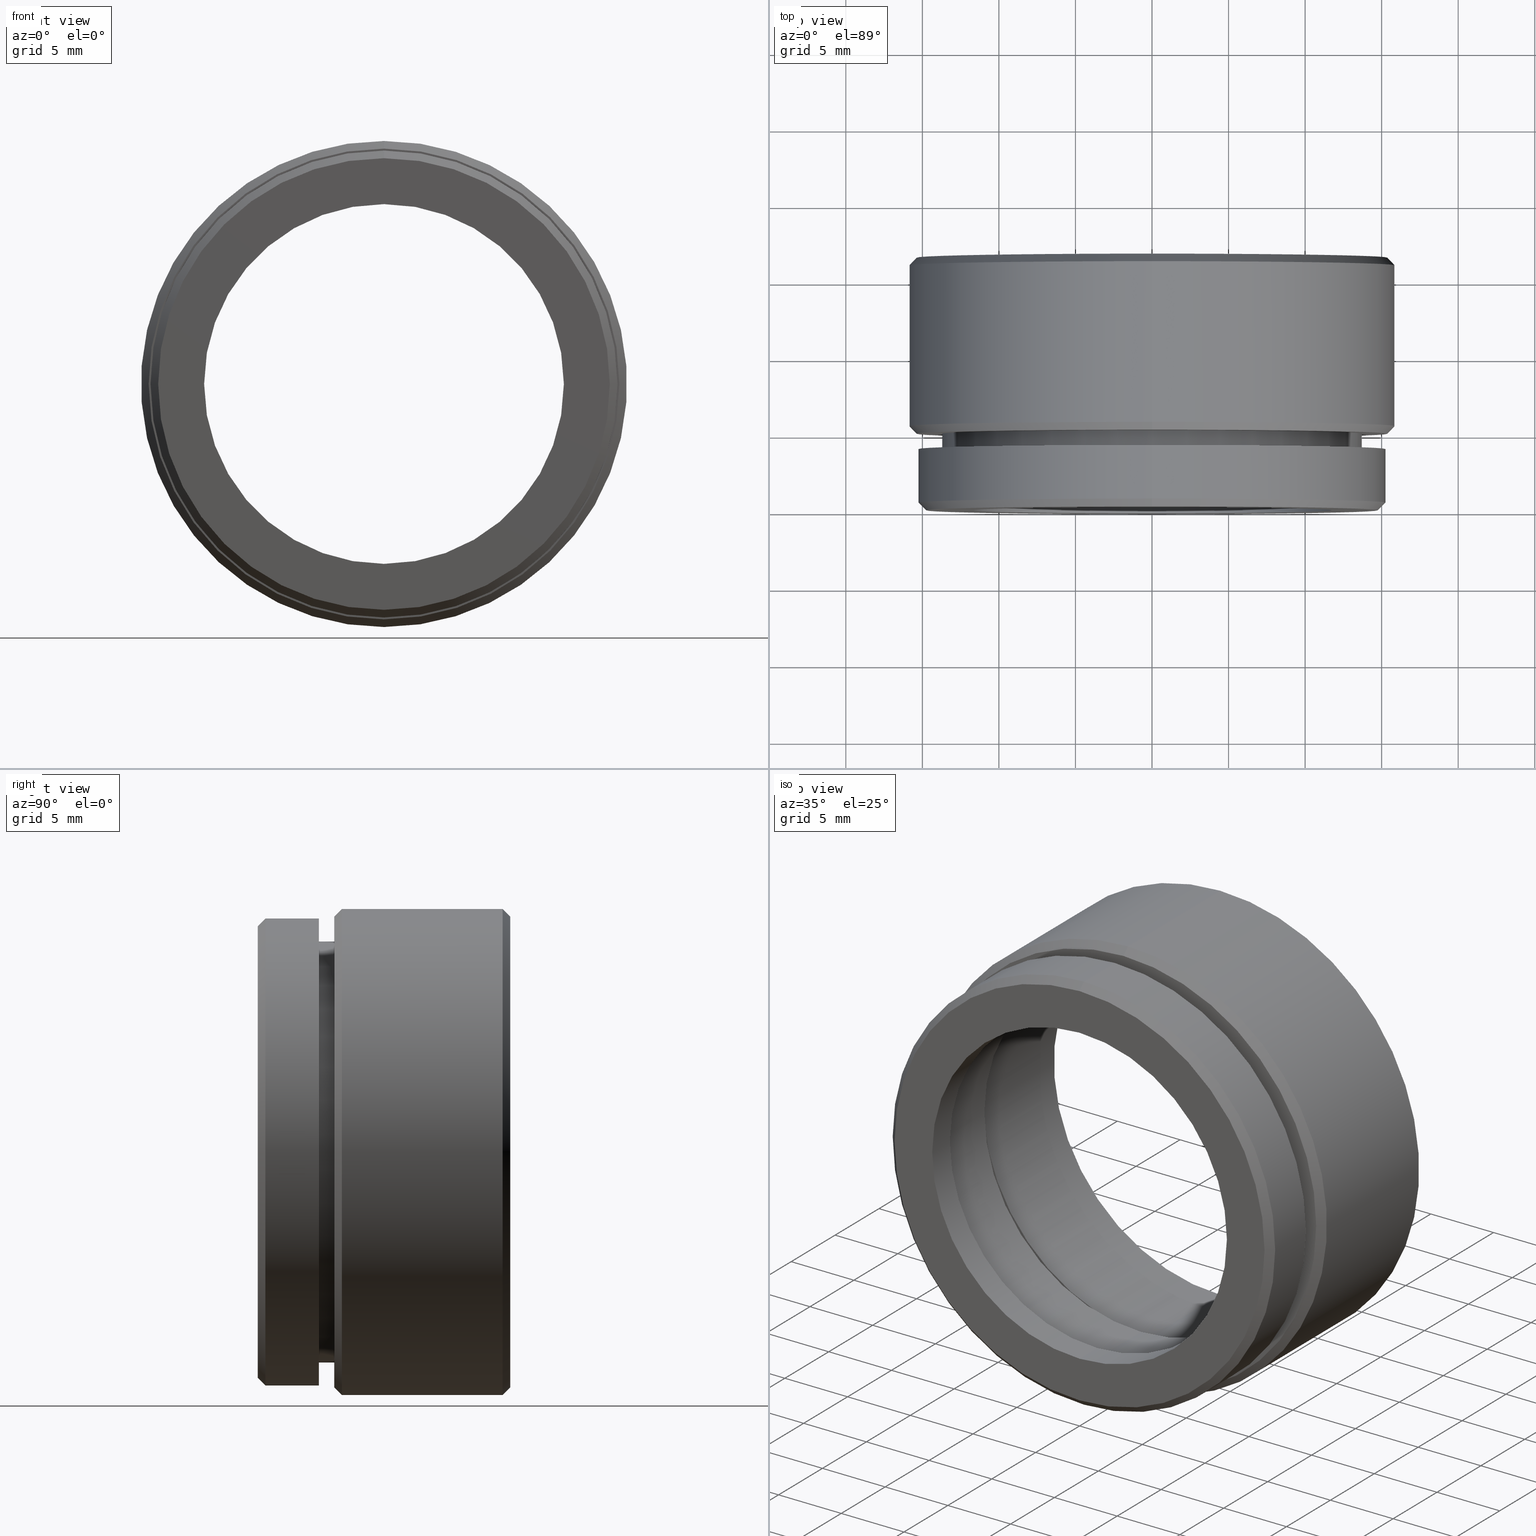
[diagram: canonical four-view strip — front | top / right | iso, engineering-drawing reading convention]
A machine part, canonical four-view strip (front | top / right | iso — engineering-drawing reading convention). The complete STEP part file that produces these views, byte-faithful:
ISO-10303-21;
HEADER;
FILE_DESCRIPTION (( 'STEP AP214' ),
    '1' );
FILE_NAME ('500022.STEP',
    '2019-09-03T08:14:15',
    ( 'user' ),
    ( '΢���й�' ),
    'SwSTEP 2.0',
    'SolidWorks 2016',
    '' );
FILE_SCHEMA (( 'AUTOMOTIVE_DESIGN' ));
ENDSEC;

DATA;
#1 = DIRECTION ( 'NONE',  ( 0.0000000000000000000, 0.0000000000000000000, -1.000000000000000000 ) ) ;
#2 = DIRECTION ( 'NONE',  ( 0.0000000000000000000, 0.0000000000000000000, -1.000000000000000000 ) ) ;
#3 = ORIENTED_EDGE ( 'NONE', *, *, #196, .F. ) ;
#4 = CIRCLE ( 'NONE', #749, 15.25000000000000000 ) ;
#5 = EDGE_CURVE ( 'NONE', #318, #41, #322, .T. ) ;
#6 = LINE ( 'NONE', #482, #239 ) ;
#7 = DIRECTION ( 'NONE',  ( 0.0000000000000000000, 1.000000000000000000, 0.0000000000000000000 ) ) ;
#8 = PRESENTATION_LAYER_ASSIGNMENT (  '', '', ( #837 ) ) ;
#9 = EDGE_LOOP ( 'NONE', ( #787, #219 ) ) ;
#10 = CARTESIAN_POINT ( 'NONE',  ( 0.0000000000000000000, 2.000000000000000400, -12.50000000000000000 ) ) ;
#11 = DIRECTION ( 'NONE',  ( 0.0000000000000000000, 0.0000000000000000000, 1.000000000000000000 ) ) ;
#12 = CARTESIAN_POINT ( 'NONE',  ( 1.836970198721030400E-015, 0.0000000000000000000, -14.75000000000000500 ) ) ;
#13 = ORIENTED_EDGE ( 'NONE', *, *, #213, .F. ) ;
#14 = ADVANCED_FACE ( 'NONE', ( #312 ), #283, .F. ) ;
#15 = DIRECTION ( 'NONE',  ( 0.0000000000000000000, 0.0000000000000000000, -1.000000000000000000 ) ) ;
#16 = MECHANICAL_DESIGN_GEOMETRIC_PRESENTATION_REPRESENTATION (  '', ( #385 ), #761 ) ;
#17 = ORIENTED_EDGE ( 'NONE', *, *, #413, .F. ) ;
#18 = CARTESIAN_POINT ( 'NONE',  ( 0.0000000000000000000, 2.000000000000000000, 0.0000000000000000000 ) ) ;
#19 = CARTESIAN_POINT ( 'NONE',  ( 0.0000000000000000000, 0.4999999999999987200, 0.0000000000000000000 ) ) ;
#20 = CARTESIAN_POINT ( 'NONE',  ( 13.25000000000000200, 8.000000000000000000, 0.0000000000000000000 ) ) ;
#21 = ORIENTED_EDGE ( 'NONE', *, *, #282, .T. ) ;
#22 = ORIENTED_EDGE ( 'NONE', *, *, #307, .T. ) ;
#23 = ORIENTED_EDGE ( 'NONE', *, *, #175, .T. ) ;
#24 = DIRECTION ( 'NONE',  ( -0.0000000000000000000, -1.000000000000000000, -0.0000000000000000000 ) ) ;
#25 = UNCERTAINTY_MEASURE_WITH_UNIT (LENGTH_MEASURE( 1.000000000000000100E-005 ), #107, 'distance_accuracy_value', 'NONE');
#26 = CARTESIAN_POINT ( 'NONE',  ( 0.0000000000000000000, 0.0000000000000000000, 0.0000000000000000000 ) ) ;
#27 = DIRECTION ( 'NONE',  ( 0.0000000000000000000, 0.0000000000000000000, 1.000000000000000000 ) ) ;
#28 = ADVANCED_FACE ( 'NONE', ( #144 ), #114, .F. ) ;
#29 = DIRECTION ( 'NONE',  ( 0.0000000000000000000, 0.0000000000000000000, -1.000000000000000000 ) ) ;
#30 = DIRECTION ( 'NONE',  ( 0.0000000000000000000, 0.0000000000000000000, -1.000000000000000000 ) ) ;
#31 = ORIENTED_EDGE ( 'NONE', *, *, #307, .F. ) ;
#32 = EDGE_LOOP ( 'NONE', ( #234, #541, #21, #628 ) ) ;
#33 = ADVANCED_FACE ( 'NONE', ( #692, #241 ), #446, .T. ) ;
#34 = ORIENTED_EDGE ( 'NONE', *, *, #716, .T. ) ;
#35 = CARTESIAN_POINT ( 'NONE',  ( 0.0000000000000000000, 7.000000000000000900, 0.0000000000000000000 ) ) ;
#36 = AXIS2_PLACEMENT_3D ( 'NONE', #836, #737, #619 ) ;
#37 = CARTESIAN_POINT ( 'NONE',  ( 0.0000000000000000000, 0.0000000000000000000, 0.0000000000000000000 ) ) ;
#38 = CIRCLE ( 'NONE', #502, 13.25000000000000200 ) ;
#39 = EDGE_CURVE ( 'NONE', #509, #318, #248, .T. ) ;
#40 = PLANE ( 'NONE',  #310 ) ;
#41 = VERTEX_POINT ( 'NONE', #384 ) ;
#42 = DIRECTION ( 'NONE',  ( 0.0000000000000000000, -0.0000000000000000000, 1.000000000000000000 ) ) ;
#43 = ORIENTED_EDGE ( 'NONE', *, *, #639, .T. ) ;
#44 = FILL_AREA_STYLE_COLOUR ( '', #226 ) ;
#45 = CARTESIAN_POINT ( 'NONE',  ( 15.87500000000000000, 16.50000000000000000, 0.0000000000000000000 ) ) ;
#46 = VERTEX_POINT ( 'NONE', #857 ) ;
#47 = VECTOR ( 'NONE', #187, 1000.000000000000000 ) ;
#48 = FILL_AREA_STYLE_COLOUR ( '', #459 ) ;
#49 = FACE_OUTER_BOUND ( 'NONE', #217, .T. ) ;
#50 = FACE_BOUND ( 'NONE', #395, .T. ) ;
#51 = DIRECTION ( 'NONE',  ( 0.0000000000000000000, 0.0000000000000000000, -1.000000000000000000 ) ) ;
#52 = CYLINDRICAL_SURFACE ( 'NONE', #765, 15.87500000000000000 ) ;
#53 = DIRECTION ( 'NONE',  ( 0.0000000000000000000, 0.0000000000000000000, 1.000000000000000000 ) ) ;
#54 = COLOUR_RGB ( '',1.000000000000000000, 1.000000000000000000, 1.000000000000000000 ) ;
#55 = EDGE_CURVE ( 'NONE', #832, #635, #846, .T. ) ;
#56 = EDGE_CURVE ( 'NONE', #279, #516, #411, .T. ) ;
#57 = ORIENTED_EDGE ( 'NONE', *, *, #369, .F. ) ;
#58 = AXIS2_PLACEMENT_3D ( 'NONE', #562, #397, #798 ) ;
#59 = UNCERTAINTY_MEASURE_WITH_UNIT (LENGTH_MEASURE( 1.000000000000000100E-005 ), #584, 'distance_accuracy_value', 'NONE');
#60 = CARTESIAN_POINT ( 'NONE',  ( 1.757368156776452000E-015, 8.000000000000000000, 14.35000000000000100 ) ) ;
#61 = DIRECTION ( 'NONE',  ( -0.0000000000000000000, -1.000000000000000000, -0.0000000000000000000 ) ) ;
#62 = ORIENTED_EDGE ( 'NONE', *, *, #820, .T. ) ;
#63 = VERTEX_POINT ( 'NONE', #809 ) ;
#64 = DIRECTION ( 'NONE',  ( 0.0000000000000000000, 1.000000000000000000, 0.0000000000000000000 ) ) ;
#65 = VECTOR ( 'NONE', #199, 1000.000000000000000 ) ;
#66 = CIRCLE ( 'NONE', #163, 15.87500000000000000 ) ;
#67 = FACE_OUTER_BOUND ( 'NONE', #90, .T. ) ;
#68 = DIRECTION ( 'NONE',  ( 0.0000000000000000000, 1.000000000000000000, 0.0000000000000000000 ) ) ;
#69 = DIRECTION ( 'NONE',  ( 0.0000000000000000000, 1.000000000000000000, 0.0000000000000000000 ) ) ;
#70 = ORIENTED_EDGE ( 'NONE', *, *, #625, .F. ) ;
#71 = DIRECTION ( 'NONE',  ( -0.0000000000000000000, -1.000000000000000000, -0.0000000000000000000 ) ) ;
#72 = AXIS2_PLACEMENT_3D ( 'NONE', #423, #594, #818 ) ;
#73 = ORIENTED_EDGE ( 'NONE', *, *, #610, .T. ) ;
#74 = CARTESIAN_POINT ( 'NONE',  ( 1.913510623667739100E-015, 16.50000000000000000, 15.37499999999999600 ) ) ;
#75 = EDGE_LOOP ( 'NONE', ( #110, #629 ) ) ;
#76 = CIRCLE ( 'NONE', #838, 15.87500000000000000 ) ;
#77 = CIRCLE ( 'NONE', #480, 12.50000000000000000 ) ;
#78 = CARTESIAN_POINT ( 'NONE',  ( 0.0000000000000000000, 0.0000000000000000000, 0.0000000000000000000 ) ) ;
#79 = VECTOR ( 'NONE', #186, 1000.000000000000000 ) ;
#80 = AXIS2_PLACEMENT_3D ( 'NONE', #732, #819, #816 ) ;
#81 = LINE ( 'NONE', #458, #288 ) ;
#82 = DIRECTION ( 'NONE',  ( -0.0000000000000000000, -1.000000000000000000, -0.0000000000000000000 ) ) ;
#83 = CARTESIAN_POINT ( 'NONE',  ( 0.0000000000000000000, 15.99999999999999600, 0.0000000000000000000 ) ) ;
#84 = DIRECTION ( 'NONE',  ( 0.0000000000000000000, 0.0000000000000000000, -1.000000000000000000 ) ) ;
#85 = DIRECTION ( 'NONE',  ( 0.0000000000000000000, 0.0000000000000000000, -1.000000000000000000 ) ) ;
#86 = ORIENTED_EDGE ( 'NONE', *, *, #382, .T. ) ;
#87 = ORIENTED_EDGE ( 'NONE', *, *, #159, .T. ) ;
#88 = VERTEX_POINT ( 'NONE', #691 ) ;
#89 = DIRECTION ( 'NONE',  ( -0.0000000000000000000, -1.000000000000000000, -0.0000000000000000000 ) ) ;
#90 = EDGE_LOOP ( 'NONE', ( #864, #293 ) ) ;
#91 = FACE_OUTER_BOUND ( 'NONE', #203, .T. ) ;
#92 = CARTESIAN_POINT ( 'NONE',  ( 0.0000000000000000000, 8.000000000000000000, 0.0000000000000000000 ) ) ;
#93 = CARTESIAN_POINT ( 'NONE',  ( 1.944126793646423200E-015, 15.99999999999999600, 15.87500000000000000 ) ) ;
#94 = AXIS2_PLACEMENT_3D ( 'NONE', #822, #416, #616 ) ;
#95 = CARTESIAN_POINT ( 'NONE',  ( 0.0000000000000000000, 5.499999999999997300, -15.87500000000000000 ) ) ;
#96 = AXIS2_PLACEMENT_3D ( 'NONE', #232, #222, #220 ) ;
#97 = DIRECTION ( 'NONE',  ( 0.0000000000000000000, 0.0000000000000000000, -1.000000000000000000 ) ) ;
#98 = ORIENTED_EDGE ( 'NONE', *, *, #687, .F. ) ;
#99 =( NAMED_UNIT ( * ) SI_UNIT ( $, .STERADIAN. ) SOLID_ANGLE_UNIT ( ) );
#100 = CARTESIAN_POINT ( 'NONE',  ( 1.530808498934191500E-015, 0.0000000000000000000, 12.50000000000000000 ) ) ;
#101 = SURFACE_STYLE_FILL_AREA ( #105 ) ;
#102 = DIRECTION ( 'NONE',  ( 0.0000000000000000000, 0.0000000000000000000, -1.000000000000000000 ) ) ;
#103 = FACE_OUTER_BOUND ( 'NONE', #872, .T. ) ;
#104 = SURFACE_SIDE_STYLE ('',( #101 ) ) ;
#105 = FILL_AREA_STYLE ('',( #142 ) ) ;
#106 =( LENGTH_UNIT ( ) NAMED_UNIT ( * ) SI_UNIT ( .MILLI., .METRE. ) );
#107 =( LENGTH_UNIT ( ) NAMED_UNIT ( * ) SI_UNIT ( .MILLI., .METRE. ) );
#108 =( GEOMETRIC_REPRESENTATION_CONTEXT ( 3 ) GLOBAL_UNCERTAINTY_ASSIGNED_CONTEXT ( ( #652 ) ) GLOBAL_UNIT_ASSIGNED_CONTEXT ( ( #304, #290, #291 ) ) REPRESENTATION_CONTEXT ( 'NONE', 'WORKASPACE' ) );
#109 = EDGE_LOOP ( 'NONE', ( #179, #457, #720, #454 ) ) ;
#110 = ORIENTED_EDGE ( 'NONE', *, *, #553, .F. ) ;
#111 = MECHANICAL_DESIGN_GEOMETRIC_PRESENTATION_REPRESENTATION (  '', ( #837 ), #150 ) ;
#112 = LINE ( 'NONE', #218, #79 ) ;
#113 = SURFACE_STYLE_USAGE ( .BOTH. , #104 ) ;
#114 = CONICAL_SURFACE ( 'NONE', #327, 13.75000000000000200, 0.7853981633974482800 ) ;
#115 = ORIENTED_EDGE ( 'NONE', *, *, #789, .F. ) ;
#116 = SURFACE_STYLE_FILL_AREA ( #334 ) ;
#117 =( NAMED_UNIT ( * ) PLANE_ANGLE_UNIT ( ) SI_UNIT ( $, .RADIAN. ) );
#118 = EDGE_CURVE ( 'NONE', #360, #419, #119, .T. ) ;
#119 = CIRCLE ( 'NONE', #498, 15.87500000000000000 ) ;
#120 = CARTESIAN_POINT ( 'NONE',  ( 1.806354028742346600E-015, 0.0000000000000000000, -14.75000000000000500 ) ) ;
#121 = VECTOR ( 'NONE', #827, 1000.000000000000000 ) ;
#122 = PLANE ( 'NONE',  #216 ) ;
#123 = CARTESIAN_POINT ( 'NONE',  ( 0.0000000000000000000, 7.000000000000000900, -14.35000000000000000 ) ) ;
#124 = DIRECTION ( 'NONE',  ( 0.0000000000000000000, 0.0000000000000000000, -1.000000000000000000 ) ) ;
#125 = CARTESIAN_POINT ( 'NONE',  ( 0.0000000000000000000, 0.0000000000000000000, 0.0000000000000000000 ) ) ;
#126 = ORIENTED_EDGE ( 'NONE', *, *, #657, .T. ) ;
#127 = ORIENTED_EDGE ( 'NONE', *, *, #640, .T. ) ;
#128 = CARTESIAN_POINT ( 'NONE',  ( 0.0000000000000000000, 0.0000000000000000000, 0.0000000000000000000 ) ) ;
#129 = VECTOR ( 'NONE', #829, 1000.000000000000000 ) ;
#130 = AXIS2_PLACEMENT_3D ( 'NONE', #261, #24, #722 ) ;
#131 = FACE_OUTER_BOUND ( 'NONE', #797, .T. ) ;
#132 = CIRCLE ( 'NONE', #535, 12.50000000000000200 ) ;
#133 = FACE_OUTER_BOUND ( 'NONE', #644, .T. ) ;
#134 = CARTESIAN_POINT ( 'NONE',  ( 0.0000000000000000000, 0.0000000000000000000, 0.0000000000000000000 ) ) ;
#135 = DIRECTION ( 'NONE',  ( 0.0000000000000000000, 1.000000000000000000, 0.0000000000000000000 ) ) ;
#136 = CARTESIAN_POINT ( 'NONE',  ( 0.0000000000000000000, 7.000000000000000900, 0.0000000000000000000 ) ) ;
#137 = CARTESIAN_POINT ( 'NONE',  ( 0.0000000000000000000, 0.4999999999999987200, 0.0000000000000000000 ) ) ;
#138 = AXIS2_PLACEMENT_3D ( 'NONE', #78, #61, #51 ) ;
#139 = DIRECTION ( 'NONE',  ( -0.0000000000000000000, -1.000000000000000000, -0.0000000000000000000 ) ) ;
#140 = DIRECTION ( 'NONE',  ( 0.0000000000000000000, 0.0000000000000000000, -1.000000000000000000 ) ) ;
#141 = ORIENTED_EDGE ( 'NONE', *, *, #639, .F. ) ;
#142 = FILL_AREA_STYLE_COLOUR ( '', #339 ) ;
#143 = ORIENTED_EDGE ( 'NONE', *, *, #268, .T. ) ;
#144 = FACE_OUTER_BOUND ( 'NONE', #590, .T. ) ;
#145 = CIRCLE ( 'NONE', #96, 13.25000000000000200 ) ;
#146 = CARTESIAN_POINT ( 'NONE',  ( 13.75000000000000000, 5.000000000000000000, 0.0000000000000000000 ) ) ;
#147 = DIRECTION ( 'NONE',  ( 0.0000000000000000000, 0.0000000000000000000, -1.000000000000000000 ) ) ;
#148 = DIRECTION ( 'NONE',  ( -0.0000000000000000000, -1.000000000000000000, -0.0000000000000000000 ) ) ;
#149 = EDGE_LOOP ( 'NONE', ( #362, #474, #256, #483 ) ) ;
#150 =( GEOMETRIC_REPRESENTATION_CONTEXT ( 3 ) GLOBAL_UNCERTAINTY_ASSIGNED_CONTEXT ( ( #25 ) ) GLOBAL_UNIT_ASSIGNED_CONTEXT ( ( #107, #117, #99 ) ) REPRESENTATION_CONTEXT ( 'NONE', 'WORKASPACE' ) );
#151 = DIRECTION ( 'NONE',  ( 0.0000000000000000000, 0.0000000000000000000, -1.000000000000000000 ) ) ;
#152 = ORIENTED_EDGE ( 'NONE', *, *, #671, .T. ) ;
#153 = EDGE_CURVE ( 'NONE', #577, #46, #76, .T. ) ;
#154 = EDGE_LOOP ( 'NONE', ( #684, #399, #22, #618 ) ) ;
#155 = PLANE ( 'NONE',  #415 ) ;
#156 = CIRCLE ( 'NONE', #791, 11.75000000000000000 ) ;
#157 = DIRECTION ( 'NONE',  ( 0.0000000000000000000, 0.0000000000000000000, -1.000000000000000000 ) ) ;
#158 = EDGE_CURVE ( 'NONE', #46, #577, #421, .T. ) ;
#159 = EDGE_CURVE ( 'NONE', #635, #832, #4, .T. ) ;
#160 = LINE ( 'NONE', #355, #129 ) ;
#161 = DIRECTION ( 'NONE',  ( -0.0000000000000000000, 1.000000000000000000, -0.0000000000000000000 ) ) ;
#162 = DIRECTION ( 'NONE',  ( 0.0000000000000000000, 0.0000000000000000000, -1.000000000000000000 ) ) ;
#163 = AXIS2_PLACEMENT_3D ( 'NONE', #266, #578, #713 ) ;
#164 = DIRECTION ( 'NONE',  ( 0.0000000000000000000, -1.000000000000000000, -0.0000000000000000000 ) ) ;
#165 = ORIENTED_EDGE ( 'NONE', *, *, #282, .F. ) ;
#166 = VERTEX_POINT ( 'NONE', #796 ) ;
#167 = CARTESIAN_POINT ( 'NONE',  ( 0.0000000000000000000, 0.0000000000000000000, 0.0000000000000000000 ) ) ;
#168 = CARTESIAN_POINT ( 'NONE',  ( 0.0000000000000000000, 0.0000000000000000000, 0.0000000000000000000 ) ) ;
#169 = ORIENTED_EDGE ( 'NONE', *, *, #735, .T. ) ;
#170 = FACE_BOUND ( 'NONE', #75, .T. ) ;
#171 = CARTESIAN_POINT ( 'NONE',  ( 1.944126793646423200E-015, 0.0000000000000000000, 15.87500000000000000 ) ) ;
#172 = DIRECTION ( 'NONE',  ( 0.0000000000000000000, 0.0000000000000000000, -1.000000000000000000 ) ) ;
#173 = PRODUCT ( '500022', '500022', '', ( #518 ) ) ;
#174 = AXIS2_PLACEMENT_3D ( 'NONE', #280, #207, #862 ) ;
#175 = EDGE_CURVE ( 'NONE', #418, #509, #263, .T. ) ;
#176 = CARTESIAN_POINT ( 'NONE',  ( 0.0000000000000000000, 0.0000000000000000000, 0.0000000000000000000 ) ) ;
#177 = DIRECTION ( 'NONE',  ( 0.0000000000000000000, 0.0000000000000000000, -1.000000000000000000 ) ) ;
#178 = AXIS2_PLACEMENT_3D ( 'NONE', #714, #705, #725 ) ;
#179 = ORIENTED_EDGE ( 'NONE', *, *, #55, .T. ) ;
#180 = DIRECTION ( 'NONE',  ( -0.0000000000000000000, -1.000000000000000000, -0.0000000000000000000 ) ) ;
#181 = CIRCLE ( 'NONE', #214, 13.75000000000000000 ) ;
#182 = CARTESIAN_POINT ( 'NONE',  ( 1.683889348827610700E-015, 4.000000000000000000, 13.75000000000000000 ) ) ;
#183 = VECTOR ( 'NONE', #215, 1000.000000000000000 ) ;
#184 = CIRCLE ( 'NONE', #432, 11.75000000000000000 ) ;
#185 = CYLINDRICAL_SURFACE ( 'NONE', #72, 11.75000000000000000 ) ;
#186 = DIRECTION ( 'NONE',  ( -0.0000000000000000000, -1.000000000000000000, -0.0000000000000000000 ) ) ;
#187 = DIRECTION ( 'NONE',  ( -0.0000000000000000000, -1.000000000000000000, -0.0000000000000000000 ) ) ;
#188 = DIRECTION ( 'NONE',  ( -0.0000000000000000000, -1.000000000000000000, -0.0000000000000000000 ) ) ;
#189 = DIRECTION ( 'NONE',  ( -0.0000000000000000000, -1.000000000000000000, -0.0000000000000000000 ) ) ;
#190 = EDGE_LOOP ( 'NONE', ( #376, #850, #564, #702 ) ) ;
#191 = VERTEX_POINT ( 'NONE', #740 ) ;
#192 = AXIS2_PLACEMENT_3D ( 'NONE', #715, #314, #868 ) ;
#193 = EDGE_LOOP ( 'NONE', ( #341, #435 ) ) ;
#194 = CIRCLE ( 'NONE', #178, 15.37500000000000000 ) ;
#195 = SURFACE_STYLE_USAGE ( .BOTH. , #790 ) ;
#196 = EDGE_CURVE ( 'NONE', #814, #225, #309, .T. ) ;
#197 = ORIENTED_EDGE ( 'NONE', *, *, #716, .F. ) ;
#198 = CARTESIAN_POINT ( 'NONE',  ( 0.0000000000000000000, 0.0000000000000000000, -11.75000000000000000 ) ) ;
#199 = DIRECTION ( 'NONE',  ( -0.0000000000000000000, -1.000000000000000000, -0.0000000000000000000 ) ) ;
#200 = ADVANCED_FACE ( 'NONE', ( #375 ), #730, .T. ) ;
#201 = CARTESIAN_POINT ( 'NONE',  ( 0.0000000000000000000, 7.000000000000000900, 0.0000000000000000000 ) ) ;
#202 = CARTESIAN_POINT ( 'NONE',  ( 0.0000000000000000000, 0.0000000000000000000, 0.0000000000000000000 ) ) ;
#203 = EDGE_LOOP ( 'NONE', ( #806, #778, #783, #373 ) ) ;
#204 = DIRECTION ( 'NONE',  ( -0.0000000000000000000, -1.000000000000000000, -0.0000000000000000000 ) ) ;
#205 = ORIENTED_EDGE ( 'NONE', *, *, #687, .T. ) ;
#206 = DIRECTION ( 'NONE',  ( 0.0000000000000000000, 0.7071067811865451300, 0.7071067811865500200 ) ) ;
#207 = DIRECTION ( 'NONE',  ( -0.0000000000000000000, -1.000000000000000000, -0.0000000000000000000 ) ) ;
#208 = CYLINDRICAL_SURFACE ( 'NONE', #330, 12.50000000000000000 ) ;
#209 = DIRECTION ( 'NONE',  ( 0.0000000000000000000, 0.0000000000000000000, -1.000000000000000000 ) ) ;
#210 = DIRECTION ( 'NONE',  ( 0.0000000000000000000, 0.0000000000000000000, 1.000000000000000000 ) ) ;
#211 = CARTESIAN_POINT ( 'NONE',  ( 0.0000000000000000000, 0.4999999999999987200, -15.25000000000000000 ) ) ;
#212 = CIRCLE ( 'NONE', #865, 13.25000000000000200 ) ;
#213 = EDGE_CURVE ( 'NONE', #681, #335, #160, .T. ) ;
#214 = AXIS2_PLACEMENT_3D ( 'NONE', #285, #257, #264 ) ;
#215 = DIRECTION ( 'NONE',  ( -0.0000000000000000000, -1.000000000000000000, -0.0000000000000000000 ) ) ;
#216 = AXIS2_PLACEMENT_3D ( 'NONE', #146, #164, #124 ) ;
#217 = EDGE_LOOP ( 'NONE', ( #197, #612, #319, #333 ) ) ;
#218 = CARTESIAN_POINT ( 'NONE',  ( 1.622657008870243300E-015, 0.0000000000000000000, 13.25000000000000200 ) ) ;
#219 = ORIENTED_EDGE ( 'NONE', *, *, #736, .T. ) ;
#220 = DIRECTION ( 'NONE',  ( 0.0000000000000000000, 0.0000000000000000000, 1.000000000000000000 ) ) ;
#221 = ORIENTED_EDGE ( 'NONE', *, *, #657, .F. ) ;
#222 = DIRECTION ( 'NONE',  ( -0.0000000000000000000, 1.000000000000000000, -0.0000000000000000000 ) ) ;
#223 = VERTEX_POINT ( 'NONE', #361 ) ;
#224 = VERTEX_POINT ( 'NONE', #356 ) ;
#225 = VERTEX_POINT ( 'NONE', #546 ) ;
#226 = COLOUR_RGB ( '',1.000000000000000000, 1.000000000000000000, 1.000000000000000000 ) ;
#227 = FACE_OUTER_BOUND ( 'NONE', #32, .T. ) ;
#228 = FACE_OUTER_BOUND ( 'NONE', #149, .T. ) ;
#229 = SURFACE_SIDE_STYLE ('',( #709 ) ) ;
#230 = DIRECTION ( 'NONE',  ( 0.0000000000000000000, 1.000000000000000000, 0.0000000000000000000 ) ) ;
#231 = ORIENTED_EDGE ( 'NONE', *, *, #118, .F. ) ;
#232 = CARTESIAN_POINT ( 'NONE',  ( 0.0000000000000000000, 16.00000000000000000, 0.0000000000000000000 ) ) ;
#233 = EDGE_CURVE ( 'NONE', #166, #279, #530, .T. ) ;
#234 = ORIENTED_EDGE ( 'NONE', *, *, #640, .F. ) ;
#235 = FACE_BOUND ( 'NONE', #408, .T. ) ;
#236 = ORIENTED_EDGE ( 'NONE', *, *, #625, .T. ) ;
#237 = CARTESIAN_POINT ( 'NONE',  ( 0.0000000000000000000, 0.0000000000000000000, -15.87500000000000000 ) ) ;
#238 = AXIS2_PLACEMENT_3D ( 'NONE', #134, #180, #162 ) ;
#239 = VECTOR ( 'NONE', #374, 1000.000000000000000 ) ;
#240 = FACE_OUTER_BOUND ( 'NONE', #526, .T. ) ;
#241 = FACE_OUTER_BOUND ( 'NONE', #507, .T. ) ;
#242 = CARTESIAN_POINT ( 'NONE',  ( 1.757368156776452000E-015, 0.0000000000000000000, 14.35000000000000100 ) ) ;
#243 = CYLINDRICAL_SURFACE ( 'NONE', #627, 14.35000000000000100 ) ;
#244 = MANIFOLD_SOLID_BREP ( '����1', #438 ) ;
#245 = DIRECTION ( 'NONE',  ( 0.0000000000000000000, 0.0000000000000000000, -1.000000000000000000 ) ) ;
#246 = ORIENTED_EDGE ( 'NONE', *, *, #588, .T. ) ;
#247 = ORIENTED_EDGE ( 'NONE', *, *, #601, .T. ) ;
#248 = LINE ( 'NONE', #120, #430 ) ;
#249 = FACE_OUTER_BOUND ( 'NONE', #447, .T. ) ;
#250 = DIRECTION ( 'NONE',  ( -0.0000000000000000000, -1.000000000000000000, -0.0000000000000000000 ) ) ;
#251 = AXIS2_PLACEMENT_3D ( 'NONE', #18, #849, #328 ) ;
#252 = CYLINDRICAL_SURFACE ( 'NONE', #192, 11.75000000000000000 ) ;
#253 = EDGE_CURVE ( 'NONE', #604, #681, #181, .T. ) ;
#254 = CARTESIAN_POINT ( 'NONE',  ( 0.0000000000000000000, 5.000000000000000000, 0.0000000000000000000 ) ) ;
#255 = AXIS2_PLACEMENT_3D ( 'NONE', #254, #250, #245 ) ;
#256 = ORIENTED_EDGE ( 'NONE', *, *, #845, .F. ) ;
#257 = DIRECTION ( 'NONE',  ( -0.0000000000000000000, -1.000000000000000000, -0.0000000000000000000 ) ) ;
#258 = DIRECTION ( 'NONE',  ( 0.0000000000000000000, -1.000000000000000000, -0.0000000000000000000 ) ) ;
#259 = VERTEX_POINT ( 'NONE', #294 ) ;
#260 = DIRECTION ( 'NONE',  ( 1.000000000000000000, 0.0000000000000000000, 0.0000000000000000000 ) ) ;
#261 = CARTESIAN_POINT ( 'NONE',  ( 0.0000000000000000000, 0.0000000000000000000, 0.0000000000000000000 ) ) ;
#262 = DIRECTION ( 'NONE',  ( -0.0000000000000000000, -1.000000000000000000, -0.0000000000000000000 ) ) ;
#263 = CIRCLE ( 'NONE', #470, 14.75000000000000500 ) ;
#264 = DIRECTION ( 'NONE',  ( 0.0000000000000000000, 0.0000000000000000000, -1.000000000000000000 ) ) ;
#265 = CIRCLE ( 'NONE', #390, 14.35000000000000100 ) ;
#266 = CARTESIAN_POINT ( 'NONE',  ( 0.0000000000000000000, 5.499999999999997300, 0.0000000000000000000 ) ) ;
#267 = EDGE_CURVE ( 'NONE', #63, #675, #758, .T. ) ;
#268 = EDGE_CURVE ( 'NONE', #259, #606, #695, .T. ) ;
#269 = ORIENTED_EDGE ( 'NONE', *, *, #429, .F. ) ;
#270 = PRESENTATION_LAYER_ASSIGNMENT (  '', '', ( #455 ) ) ;
#271 = DIRECTION ( 'NONE',  ( 8.659560562354932900E-017, 0.7071067811865474600, -0.7071067811865474600 ) ) ;
#272 = EDGE_CURVE ( 'NONE', #63, #814, #145, .T. ) ;
#273 = CARTESIAN_POINT ( 'NONE',  ( 0.0000000000000000000, 15.99999999999999600, 0.0000000000000000000 ) ) ;
#274 = VECTOR ( 'NONE', #607, 1000.000000000000000 ) ;
#275 = DIRECTION ( 'NONE',  ( 0.0000000000000000000, 0.0000000000000000000, -1.000000000000000000 ) ) ;
#276 =( NAMED_UNIT ( * ) PLANE_ANGLE_UNIT ( ) SI_UNIT ( $, .RADIAN. ) );
#277 = FILL_AREA_STYLE ('',( #381 ) ) ;
#278 = AXIS2_PLACEMENT_3D ( 'NONE', #721, #646, #151 ) ;
#279 = VERTEX_POINT ( 'NONE', #281 ) ;
#280 = CARTESIAN_POINT ( 'NONE',  ( 0.0000000000000000000, 15.99999999999999600, 0.0000000000000000000 ) ) ;
#281 = CARTESIAN_POINT ( 'NONE',  ( 0.0000000000000000000, 7.000000000000000900, -12.50000000000000200 ) ) ;
#282 = EDGE_CURVE ( 'NONE', #577, #360, #645, .T. ) ;
#283 = CYLINDRICAL_SURFACE ( 'NONE', #514, 14.35000000000000100 ) ;
#284 = AXIS2_PLACEMENT_3D ( 'NONE', #538, #316, #287 ) ;
#285 = CARTESIAN_POINT ( 'NONE',  ( 0.0000000000000000000, 5.000000000000000000, 0.0000000000000000000 ) ) ;
#286 = VECTOR ( 'NONE', #189, 1000.000000000000000 ) ;
#287 = DIRECTION ( 'NONE',  ( 0.0000000000000000000, 0.0000000000000000000, -1.000000000000000000 ) ) ;
#288 = VECTOR ( 'NONE', #680, 1000.000000000000000 ) ;
#289 = CARTESIAN_POINT ( 'NONE',  ( 0.0000000000000000000, 5.000000000000000000, 0.0000000000000000000 ) ) ;
#290 =( NAMED_UNIT ( * ) PLANE_ANGLE_UNIT ( ) SI_UNIT ( $, .RADIAN. ) );
#291 =( NAMED_UNIT ( * ) SI_UNIT ( $, .STERADIAN. ) SOLID_ANGLE_UNIT ( ) );
#292 = DIRECTION ( 'NONE',  ( 0.0000000000000000000, 0.0000000000000000000, -1.000000000000000000 ) ) ;
#293 = ORIENTED_EDGE ( 'NONE', *, *, #513, .F. ) ;
#294 = CARTESIAN_POINT ( 'NONE',  ( 1.913510623667739500E-015, 5.000000000000000000, -15.37500000000000000 ) ) ;
#295 = SURFACE_STYLE_FILL_AREA ( #370 ) ;
#296 = CARTESIAN_POINT ( 'NONE',  ( 1.683889348827611000E-015, 16.50000000000000000, -13.75000000000000200 ) ) ;
#297 = DIRECTION ( 'NONE',  ( -0.0000000000000000000, -1.000000000000000000, -0.0000000000000000000 ) ) ;
#298 = EDGE_CURVE ( 'NONE', #729, #719, #733, .T. ) ;
#299 = AXIS2_PLACEMENT_3D ( 'NONE', #201, #204, #209 ) ;
#300 = DIRECTION ( 'NONE',  ( 0.0000000000000000000, 0.0000000000000000000, 1.000000000000000000 ) ) ;
#301 = EDGE_LOOP ( 'NONE', ( #70, #666, #529, #31 ) ) ;
#302 = ORIENTED_EDGE ( 'NONE', *, *, #452, .T. ) ;
#303 = FACE_BOUND ( 'NONE', #813, .T. ) ;
#304 =( LENGTH_UNIT ( ) NAMED_UNIT ( * ) SI_UNIT ( .MILLI., .METRE. ) );
#305 = FACE_OUTER_BOUND ( 'NONE', #658, .T. ) ;
#306 = DIRECTION ( 'NONE',  ( 0.0000000000000000000, 1.000000000000000000, 0.0000000000000000000 ) ) ;
#307 = EDGE_CURVE ( 'NONE', #567, #337, #741, .T. ) ;
#308 = AXIS2_PLACEMENT_3D ( 'NONE', #672, #517, #592 ) ;
#309 = LINE ( 'NONE', #641, #853 ) ;
#310 = AXIS2_PLACEMENT_3D ( 'NONE', #45, #69, #42 ) ;
#311 = PRESENTATION_STYLE_ASSIGNMENT (( #436 ) ) ;
#312 = FACE_OUTER_BOUND ( 'NONE', #576, .T. ) ;
#313 = CYLINDRICAL_SURFACE ( 'NONE', #674, 13.25000000000000200 ) ;
#314 = DIRECTION ( 'NONE',  ( -0.0000000000000000000, -1.000000000000000000, -0.0000000000000000000 ) ) ;
#315 = EDGE_CURVE ( 'NONE', #368, #729, #810, .T. ) ;
#316 = DIRECTION ( 'NONE',  ( -0.0000000000000000000, -1.000000000000000000, -0.0000000000000000000 ) ) ;
#317 = DIRECTION ( 'NONE',  ( 0.0000000000000000000, -0.7071067811865474600, -0.7071067811865474600 ) ) ;
#318 = VERTEX_POINT ( 'NONE', #211 ) ;
#319 = ORIENTED_EDGE ( 'NONE', *, *, #298, .T. ) ;
#320 = DIRECTION ( 'NONE',  ( 0.0000000000000000000, 0.0000000000000000000, -1.000000000000000000 ) ) ;
#321 = DIRECTION ( 'NONE',  ( -0.0000000000000000000, -1.000000000000000000, -0.0000000000000000000 ) ) ;
#322 = CIRCLE ( 'NONE', #365, 15.25000000000000000 ) ;
#323 = CONICAL_SURFACE ( 'NONE', #768, 15.37500000000000000, 0.7853981633974517200 ) ;
#324 = LINE ( 'NONE', #493, #581 ) ;
#325 = FACE_OUTER_BOUND ( 'NONE', #109, .T. ) ;
#326 = EDGE_CURVE ( 'NONE', #814, #659, #112, .T. ) ;
#327 = AXIS2_PLACEMENT_3D ( 'NONE', #609, #161, #210 ) ;
#328 = DIRECTION ( 'NONE',  ( 0.0000000000000000000, 0.0000000000000000000, -1.000000000000000000 ) ) ;
#329 = CARTESIAN_POINT ( 'NONE',  ( 0.0000000000000000000, 0.0000000000000000000, 0.0000000000000000000 ) ) ;
#330 = AXIS2_PLACEMENT_3D ( 'NONE', #176, #188, #157 ) ;
#331 = CARTESIAN_POINT ( 'NONE',  ( 0.0000000000000000000, 5.000000000000000000, -13.75000000000000000 ) ) ;
#332 = SURFACE_SIDE_STYLE ('',( #116 ) ) ;
#333 = ORIENTED_EDGE ( 'NONE', *, *, #382, .F. ) ;
#334 = FILL_AREA_STYLE ('',( #550 ) ) ;
#335 = VERTEX_POINT ( 'NONE', #182 ) ;
#336 = SURFACE_STYLE_USAGE ( .BOTH. , #332 ) ;
#337 = VERTEX_POINT ( 'NONE', #665 ) ;
#338 = ADVANCED_FACE ( 'NONE', ( #240 ), #208, .F. ) ;
#339 = COLOUR_RGB ( '',1.000000000000000000, 1.000000000000000000, 1.000000000000000000 ) ;
#340 = ADVANCED_BREP_SHAPE_REPRESENTATION ( '500022', ( #244, #710 ), #830 ) ;
#341 = ORIENTED_EDGE ( 'NONE', *, *, #346, .T. ) ;
#342 = DIRECTION ( 'NONE',  ( -0.0000000000000000000, -1.000000000000000000, -0.0000000000000000000 ) ) ;
#343 = CARTESIAN_POINT ( 'NONE',  ( 0.0000000000000000000, 2.000000000000000000, -11.75000000000000000 ) ) ;
#344 = EDGE_LOOP ( 'NONE', ( #98, #17, #169, #231 ) ) ;
#345 = DIRECTION ( 'NONE',  ( 0.0000000000000000000, 1.000000000000000000, 0.0000000000000000000 ) ) ;
#346 = EDGE_CURVE ( 'NONE', #279, #166, #132, .T. ) ;
#347 = ADVANCED_FACE ( 'NONE', ( #363 ), #561, .T. ) ;
#348 = STYLED_ITEM ( 'NONE', ( #856 ), #200 ) ;
#349 = ORIENTED_EDGE ( 'NONE', *, *, #532, .F. ) ;
#350 = DIRECTION ( 'NONE',  ( 0.0000000000000000000, 0.0000000000000000000, -1.000000000000000000 ) ) ;
#351 = CIRCLE ( 'NONE', #130, 14.75000000000000500 ) ;
#352 = CARTESIAN_POINT ( 'NONE',  ( 0.0000000000000000000, 0.0000000000000000000, 0.0000000000000000000 ) ) ;
#353 = CIRCLE ( 'NONE', #835, 13.75000000000000200 ) ;
#354 = ADVANCED_FACE ( 'NONE', ( #131, #235 ), #122, .T. ) ;
#355 = CARTESIAN_POINT ( 'NONE',  ( 1.683889348827610700E-015, 0.0000000000000000000, 13.75000000000000000 ) ) ;
#356 = CARTESIAN_POINT ( 'NONE',  ( 0.0000000000000000000, 4.000000000000000000, -13.75000000000000000 ) ) ;
#357 = CARTESIAN_POINT ( 'NONE',  ( 0.0000000000000000000, 0.0000000000000000000, 0.0000000000000000000 ) ) ;
#358 = ADVANCED_FACE ( 'NONE', ( #91 ), #313, .F. ) ;
#359 = PLANE ( 'NONE',  #638 ) ;
#360 = VERTEX_POINT ( 'NONE', #95 ) ;
#361 = CARTESIAN_POINT ( 'NONE',  ( 1.438959988998140200E-015, 2.000000000000000000, 11.75000000000000000 ) ) ;
#362 = ORIENTED_EDGE ( 'NONE', *, *, #610, .F. ) ;
#363 = FACE_OUTER_BOUND ( 'NONE', #392, .T. ) ;
#364 = SURFACE_SIDE_STYLE ('',( #696 ) ) ;
#365 = AXIS2_PLACEMENT_3D ( 'NONE', #137, #834, #172 ) ;
#366 = ADVANCED_FACE ( 'NONE', ( #751 ), #501, .T. ) ;
#367 = DIRECTION ( 'NONE',  ( -0.0000000000000000000, -1.000000000000000000, -0.0000000000000000000 ) ) ;
#368 = VERTEX_POINT ( 'NONE', #60 ) ;
#369 = EDGE_CURVE ( 'NONE', #166, #88, #804, .T. ) ;
#370 = FILL_AREA_STYLE ('',( #48 ) ) ;
#371 = ORIENTED_EDGE ( 'NONE', *, *, #268, .F. ) ;
#372 = UNCERTAINTY_MEASURE_WITH_UNIT (LENGTH_MEASURE( 1.000000000000000100E-005 ), #599, 'distance_accuracy_value', 'NONE');
#373 = ORIENTED_EDGE ( 'NONE', *, *, #700, .F. ) ;
#374 = DIRECTION ( 'NONE',  ( -0.0000000000000000000, -1.000000000000000000, -0.0000000000000000000 ) ) ;
#375 = FACE_OUTER_BOUND ( 'NONE', #770, .T. ) ;
#376 = ORIENTED_EDGE ( 'NONE', *, *, #267, .F. ) ;
#377 = ADVANCED_FACE ( 'NONE', ( #489 ), #824, .T. ) ;
#378 = PRODUCT_DEFINITION_SHAPE ( 'NONE', 'NONE',  #678 ) ;
#379 = ORIENTED_EDGE ( 'NONE', *, *, #272, .F. ) ;
#380 = ADVANCED_FACE ( 'NONE', ( #558, #420 ), #40, .T. ) ;
#381 = FILL_AREA_STYLE_COLOUR ( '', #563 ) ;
#382 = EDGE_CURVE ( 'NONE', #475, #719, #462, .T. ) ;
#383 =( GEOMETRIC_REPRESENTATION_CONTEXT ( 3 ) GLOBAL_UNCERTAINTY_ASSIGNED_CONTEXT ( ( #487 ) ) GLOBAL_UNIT_ASSIGNED_CONTEXT ( ( #106, #624, #556 ) ) REPRESENTATION_CONTEXT ( 'NONE', 'WORKASPACE' ) );
#384 = CARTESIAN_POINT ( 'NONE',  ( 1.867586368699713800E-015, 0.4999999999999987200, 15.25000000000000000 ) ) ;
#385 = STYLED_ITEM ( 'NONE', ( #848 ), #389 ) ;
#386 = DIRECTION ( 'NONE',  ( -0.0000000000000000000, -1.000000000000000000, -0.0000000000000000000 ) ) ;
#387 = DIRECTION ( 'NONE',  ( -0.0000000000000000000, -1.000000000000000000, -0.0000000000000000000 ) ) ;
#388 = CYLINDRICAL_SURFACE ( 'NONE', #583, 15.87500000000000000 ) ;
#389 = ADVANCED_FACE ( 'NONE', ( #531 ), #613, .F. ) ;
#390 = AXIS2_PLACEMENT_3D ( 'NONE', #92, #386, #275 ) ;
#391 = DIRECTION ( 'NONE',  ( 0.0000000000000000000, 0.0000000000000000000, -1.000000000000000000 ) ) ;
#392 = EDGE_LOOP ( 'NONE', ( #417, #656, #349, #555 ) ) ;
#393 = DIRECTION ( 'NONE',  ( -0.0000000000000000000, -1.000000000000000000, -0.0000000000000000000 ) ) ;
#394 = ADVANCED_FACE ( 'NONE', ( #744 ), #323, .T. ) ;
#395 = EDGE_LOOP ( 'NONE', ( #401, #236 ) ) ;
#396 = ORIENTED_EDGE ( 'NONE', *, *, #685, .F. ) ;
#397 = DIRECTION ( 'NONE',  ( -0.0000000000000000000, -1.000000000000000000, -0.0000000000000000000 ) ) ;
#398 = CARTESIAN_POINT ( 'NONE',  ( 1.622657008870243300E-015, 16.00000000000000000, 13.25000000000000200 ) ) ;
#399 = ORIENTED_EDGE ( 'NONE', *, *, #484, .F. ) ;
#400 = PRESENTATION_STYLE_ASSIGNMENT (( #113 ) ) ;
#401 = ORIENTED_EDGE ( 'NONE', *, *, #484, .T. ) ;
#402 = CIRCLE ( 'NONE', #859, 15.37499999999999600 ) ;
#403 = VECTOR ( 'NONE', #434, 1000.000000000000100 ) ;
#404 = DIRECTION ( 'NONE',  ( 0.0000000000000000000, 0.0000000000000000000, 1.000000000000000000 ) ) ;
#405 = CARTESIAN_POINT ( 'NONE',  ( 0.0000000000000000000, 5.000000000000000000, 0.0000000000000000000 ) ) ;
#406 = CARTESIAN_POINT ( 'NONE',  ( 0.0000000000000000000, 0.0000000000000000000, -14.35000000000000100 ) ) ;
#407 = DIRECTION ( 'NONE',  ( -0.0000000000000000000, -1.000000000000000000, -0.0000000000000000000 ) ) ;
#408 = EDGE_LOOP ( 'NONE', ( #851, #540 ) ) ;
#409 = DIRECTION ( 'NONE',  ( 0.0000000000000000000, 0.0000000000000000000, -1.000000000000000000 ) ) ;
#410 = CIRCLE ( 'NONE', #575, 14.35000000000000100 ) ;
#411 = LINE ( 'NONE', #766, #47 ) ;
#412 = VECTOR ( 'NONE', #793, 1000.000000000000000 ) ;
#413 = EDGE_CURVE ( 'NONE', #606, #259, #194, .T. ) ;
#414 = ORIENTED_EDGE ( 'NONE', *, *, #298, .F. ) ;
#415 = AXIS2_PLACEMENT_3D ( 'NONE', #742, #860, #847 ) ;
#416 = DIRECTION ( 'NONE',  ( 0.0000000000000000000, 1.000000000000000000, 0.0000000000000000000 ) ) ;
#417 = ORIENTED_EDGE ( 'NONE', *, *, #253, .T. ) ;
#418 = VERTEX_POINT ( 'NONE', #707 ) ;
#419 = VERTEX_POINT ( 'NONE', #694 ) ;
#420 = FACE_OUTER_BOUND ( 'NONE', #9, .T. ) ;
#421 = CIRCLE ( 'NONE', #568, 15.87500000000000000 ) ;
#422 = ORIENTED_EDGE ( 'NONE', *, *, #588, .F. ) ;
#423 = CARTESIAN_POINT ( 'NONE',  ( 0.0000000000000000000, 0.0000000000000000000, 0.0000000000000000000 ) ) ;
#424 = PRESENTATION_STYLE_ASSIGNMENT (( #543 ) ) ;
#425 = DIRECTION ( 'NONE',  ( 0.0000000000000000000, -0.0000000000000000000, 1.000000000000000000 ) ) ;
#426 = FILL_AREA_STYLE ('',( #44 ) ) ;
#427 = DIRECTION ( 'NONE',  ( 0.0000000000000000000, 0.0000000000000000000, -1.000000000000000000 ) ) ;
#428 = ORIENTED_EDGE ( 'NONE', *, *, #5, .T. ) ;
#429 = EDGE_CURVE ( 'NONE', #437, #659, #38, .T. ) ;
#430 = VECTOR ( 'NONE', #642, 1000.000000000000000 ) ;
#431 = APPLICATION_PROTOCOL_DEFINITION ( 'draft international standard', 'automotive_design', 1998, #534 ) ;
#432 = AXIS2_PLACEMENT_3D ( 'NONE', #831, #803, #823 ) ;
#433 = AXIS2_PLACEMENT_3D ( 'NONE', #352, #393, #350 ) ;
#434 = DIRECTION ( 'NONE',  ( 8.659560562354962400E-017, 0.7071067811865451300, -0.7071067811865500200 ) ) ;
#435 = ORIENTED_EDGE ( 'NONE', *, *, #233, .T. ) ;
#436 = SURFACE_STYLE_USAGE ( .BOTH. , #229 ) ;
#437 = VERTEX_POINT ( 'NONE', #711 ) ;
#438 = CLOSED_SHELL ( 'NONE', ( #586, #394, #602, #28, #338, #572, #358, #873, #347, #676, #597, #667, #525, #200, #549, #377, #354, #579, #380, #389, #566, #14, #33, #703, #542, #637, #366, #863, #593 ) ) ;
#439 = ORIENTED_EDGE ( 'NONE', *, *, #429, .T. ) ;
#440 = LINE ( 'NONE', #623, #412 ) ;
#441 = ORIENTED_EDGE ( 'NONE', *, *, #772, .T. ) ;
#442 = DIRECTION ( 'NONE',  ( -0.0000000000000000000, -1.000000000000000000, -0.0000000000000000000 ) ) ;
#443 = CIRCLE ( 'NONE', #58, 13.75000000000000000 ) ;
#444 = PRESENTATION_LAYER_ASSIGNMENT (  '', '', ( #385 ) ) ;
#445 = CARTESIAN_POINT ( 'NONE',  ( 0.0000000000000000000, 15.99999999999999600, -15.87500000000000000 ) ) ;
#446 = PLANE ( 'NONE',  #589 ) ;
#447 = EDGE_LOOP ( 'NONE', ( #704, #750 ) ) ;
#448 = CIRCLE ( 'NONE', #36, 11.75000000000000000 ) ;
#449 = DIRECTION ( 'NONE',  ( 0.0000000000000000000, 1.000000000000000000, 0.0000000000000000000 ) ) ;
#450 = DIRECTION ( 'NONE',  ( 0.0000000000000000000, 0.0000000000000000000, 1.000000000000000000 ) ) ;
#451 = ORIENTED_EDGE ( 'NONE', *, *, #662, .T. ) ;
#452 = EDGE_CURVE ( 'NONE', #870, #46, #611, .T. ) ;
#453 = CARTESIAN_POINT ( 'NONE',  ( 0.0000000000000000000, 16.50000000000000000, 0.0000000000000000000 ) ) ;
#454 = ORIENTED_EDGE ( 'NONE', *, *, #671, .F. ) ;
#455 = STYLED_ITEM ( 'NONE', ( #424 ), #676 ) ;
#456 = ORIENTED_EDGE ( 'NONE', *, *, #871, .F. ) ;
#457 = ORIENTED_EDGE ( 'NONE', *, *, #871, .T. ) ;
#458 = CARTESIAN_POINT ( 'NONE',  ( 0.0000000000000000000, 0.0000000000000000000, -15.25000000000000000 ) ) ;
#459 = COLOUR_RGB ( '',1.000000000000000000, 1.000000000000000000, 1.000000000000000000 ) ;
#460 = CIRCLE ( 'NONE', #251, 11.75000000000000000 ) ;
#461 = EDGE_CURVE ( 'NONE', #418, #41, #734, .T. ) ;
#462 = LINE ( 'NONE', #406, #545 ) ;
#463 = FACE_OUTER_BOUND ( 'NONE', #301, .T. ) ;
#464 = ORIENTED_EDGE ( 'NONE', *, *, #700, .T. ) ;
#465 = ORIENTED_EDGE ( 'NONE', *, *, #267, .T. ) ;
#466 = DIRECTION ( 'NONE',  ( 0.0000000000000000000, 0.0000000000000000000, 1.000000000000000000 ) ) ;
#467 = EDGE_LOOP ( 'NONE', ( #371, #205, #554, #653 ) ) ;
#468 = LINE ( 'NONE', #171, #121 ) ;
#469 = EDGE_CURVE ( 'NONE', #191, #870, #402, .T. ) ;
#470 = AXIS2_PLACEMENT_3D ( 'NONE', #357, #679, #427 ) ;
#471 = DIRECTION ( 'NONE',  ( 0.0000000000000000000, 0.0000000000000000000, 1.000000000000000000 ) ) ;
#472 = AXIS2_PLACEMENT_3D ( 'NONE', #37, #367, #30 ) ;
#473 = CARTESIAN_POINT ( 'NONE',  ( 1.882894453689055700E-015, 5.000000000000000000, -15.37500000000000000 ) ) ;
#474 = ORIENTED_EDGE ( 'NONE', *, *, #39, .T. ) ;
#475 = VERTEX_POINT ( 'NONE', #769 ) ;
#476 = VECTOR ( 'NONE', #752, 1000.000000000000000 ) ;
#477 = VECTOR ( 'NONE', #317, 1000.000000000000100 ) ;
#478 = FACE_OUTER_BOUND ( 'NONE', #190, .T. ) ;
#479 = CARTESIAN_POINT ( 'NONE',  ( 0.0000000000000000000, 16.50000000000000000, 0.0000000000000000000 ) ) ;
#480 = AXIS2_PLACEMENT_3D ( 'NONE', #626, #342, #1 ) ;
#481 = DIRECTION ( 'NONE',  ( 0.0000000000000000000, 0.0000000000000000000, 1.000000000000000000 ) ) ;
#482 = CARTESIAN_POINT ( 'NONE',  ( 0.0000000000000000000, 0.0000000000000000000, -13.75000000000000000 ) ) ;
#483 = ORIENTED_EDGE ( 'NONE', *, *, #461, .F. ) ;
#484 = EDGE_CURVE ( 'NONE', #567, #223, #460, .T. ) ;
#485 = ORIENTED_EDGE ( 'NONE', *, *, #461, .T. ) ;
#486 = CARTESIAN_POINT ( 'NONE',  ( 14.35000000000000000, 7.000000000000000900, 0.0000000000000000000 ) ) ;
#487 = UNCERTAINTY_MEASURE_WITH_UNIT (LENGTH_MEASURE( 1.000000000000000100E-005 ), #106, 'distance_accuracy_value', 'NONE');
#488 = CARTESIAN_POINT ( 'NONE',  ( 1.757368156776451600E-015, 7.000000000000000900, 14.35000000000000000 ) ) ;
#489 = FACE_OUTER_BOUND ( 'NONE', #622, .T. ) ;
#490 = CARTESIAN_POINT ( 'NONE',  ( 1.683889348827610700E-015, 5.000000000000000000, 13.75000000000000000 ) ) ;
#491 = CYLINDRICAL_SURFACE ( 'NONE', #278, 12.50000000000000000 ) ;
#492 = LINE ( 'NONE', #473, #403 ) ;
#493 = CARTESIAN_POINT ( 'NONE',  ( 0.0000000000000000000, 5.000000000000000000, 15.37500000000000000 ) ) ;
#494 = CARTESIAN_POINT ( 'NONE',  ( 0.0000000000000000000, 7.999999999999998200, 0.0000000000000000000 ) ) ;
#495 = DIRECTION ( 'NONE',  ( 0.0000000000000000000, 0.0000000000000000000, 1.000000000000000000 ) ) ;
#496 = DIRECTION ( 'NONE',  ( 0.0000000000000000000, 1.000000000000000000, 0.0000000000000000000 ) ) ;
#497 = CARTESIAN_POINT ( 'NONE',  ( 0.0000000000000000000, 16.00000000000000000, 0.0000000000000000000 ) ) ;
#498 = AXIS2_PLACEMENT_3D ( 'NONE', #718, #306, #84 ) ;
#499 = APPLICATION_CONTEXT ( 'automotive_design' ) ;
#500 = ORIENTED_EDGE ( 'NONE', *, *, #532, .T. ) ;
#501 = CONICAL_SURFACE ( 'NONE', #747, 15.87500000000000000, 0.7853981633974482800 ) ;
#502 = AXIS2_PLACEMENT_3D ( 'NONE', #728, #708, #738 ) ;
#503 = CARTESIAN_POINT ( 'NONE',  ( 0.0000000000000000000, 4.000000000000000900, -15.25000000000000000 ) ) ;
#504 = PRESENTATION_LAYER_ASSIGNMENT (  '', '', ( #773 ) ) ;
#505 = CARTESIAN_POINT ( 'NONE',  ( 0.0000000000000000000, 16.50000000000000000, 0.0000000000000000000 ) ) ;
#506 = ORIENTED_EDGE ( 'NONE', *, *, #452, .F. ) ;
#507 = EDGE_LOOP ( 'NONE', ( #422, #414 ) ) ;
#508 = DIRECTION ( 'NONE',  ( -0.0000000000000000000, -1.000000000000000000, -0.0000000000000000000 ) ) ;
#509 = VERTEX_POINT ( 'NONE', #12 ) ;
#510 = CONICAL_SURFACE ( 'NONE', #805, 15.37500000000000000, 0.7853981633974517200 ) ;
#511 = VECTOR ( 'NONE', #739, 1000.000000000000100 ) ;
#512 = LINE ( 'NONE', #690, #647 ) ;
#513 = EDGE_CURVE ( 'NONE', #88, #516, #77, .T. ) ;
#514 = AXIS2_PLACEMENT_3D ( 'NONE', #168, #786, #292 ) ;
#515 = AXIS2_PLACEMENT_3D ( 'NONE', #785, #777, #689 ) ;
#516 = VERTEX_POINT ( 'NONE', #10 ) ;
#517 = DIRECTION ( 'NONE',  ( -0.0000000000000000000, -1.000000000000000000, -0.0000000000000000000 ) ) ;
#518 = PRODUCT_CONTEXT ( 'NONE', #499, 'mechanical' ) ;
#519 =( GEOMETRIC_REPRESENTATION_CONTEXT ( 3 ) GLOBAL_UNCERTAINTY_ASSIGNED_CONTEXT ( ( #372 ) ) GLOBAL_UNIT_ASSIGNED_CONTEXT ( ( #599, #523, #574 ) ) REPRESENTATION_CONTEXT ( 'NONE', 'WORKASPACE' ) );
#520 = CIRCLE ( 'NONE', #80, 12.50000000000000000 ) ;
#521 =( NAMED_UNIT ( * ) SI_UNIT ( $, .STERADIAN. ) SOLID_ANGLE_UNIT ( ) );
#522 = CIRCLE ( 'NONE', #603, 14.35000000000000000 ) ;
#523 =( NAMED_UNIT ( * ) PLANE_ANGLE_UNIT ( ) SI_UNIT ( $, .RADIAN. ) );
#524 = ORIENTED_EDGE ( 'NONE', *, *, #56, .F. ) ;
#525 = ADVANCED_FACE ( 'NONE', ( #133, #170 ), #155, .T. ) ;
#526 = EDGE_LOOP ( 'NONE', ( #792, #560, #582, #524 ) ) ;
#527 = CARTESIAN_POINT ( 'NONE',  ( 0.0000000000000000000, 15.99999999999999600, 0.0000000000000000000 ) ) ;
#528 = AXIS2_PLACEMENT_3D ( 'NONE', #794, #724, #471 ) ;
#529 = ORIENTED_EDGE ( 'NONE', *, *, #661, .T. ) ;
#530 = CIRCLE ( 'NONE', #284, 12.50000000000000200 ) ;
#531 = FACE_OUTER_BOUND ( 'NONE', #795, .T. ) ;
#532 = EDGE_CURVE ( 'NONE', #224, #335, #536, .T. ) ;
#533 = FACE_OUTER_BOUND ( 'NONE', #746, .T. ) ;
#534 = APPLICATION_CONTEXT ( 'automotive_design' ) ;
#535 = AXIS2_PLACEMENT_3D ( 'NONE', #136, #139, #140 ) ;
#536 = CIRCLE ( 'NONE', #515, 13.75000000000000000 ) ;
#537 = DIRECTION ( 'NONE',  ( -0.0000000000000000000, -1.000000000000000000, -0.0000000000000000000 ) ) ;
#538 = CARTESIAN_POINT ( 'NONE',  ( 0.0000000000000000000, 7.000000000000000900, 0.0000000000000000000 ) ) ;
#539 = DIRECTION ( 'NONE',  ( 0.0000000000000000000, 0.0000000000000000000, 1.000000000000000000 ) ) ;
#540 = ORIENTED_EDGE ( 'NONE', *, *, #759, .F. ) ;
#541 = ORIENTED_EDGE ( 'NONE', *, *, #158, .T. ) ;
#542 = ADVANCED_FACE ( 'NONE', ( #50, #67 ), #840, .T. ) ;
#543 = SURFACE_STYLE_USAGE ( .BOTH. , #636 ) ;
#544 = PRESENTATION_STYLE_ASSIGNMENT (( #336 ) ) ;
#545 = VECTOR ( 'NONE', #442, 1000.000000000000000 ) ;
#546 = CARTESIAN_POINT ( 'NONE',  ( 0.0000000000000000000, 16.50000000000000000, 13.75000000000000200 ) ) ;
#547 = PRESENTATION_LAYER_ASSIGNMENT (  '', '', ( #348 ) ) ;
#548 = FACE_OUTER_BOUND ( 'NONE', #344, .T. ) ;
#549 = ADVANCED_FACE ( 'NONE', ( #303, #249 ), #826, .T. ) ;
#550 = FILL_AREA_STYLE_COLOUR ( '', #706 ) ;
#551 = AXIS2_PLACEMENT_3D ( 'NONE', #631, #345, #425 ) ;
#552 =( LENGTH_UNIT ( ) NAMED_UNIT ( * ) SI_UNIT ( .MILLI., .METRE. ) );
#553 = EDGE_CURVE ( 'NONE', #337, #811, #156, .T. ) ;
#554 = ORIENTED_EDGE ( 'NONE', *, *, #601, .F. ) ;
#555 = ORIENTED_EDGE ( 'NONE', *, *, #772, .F. ) ;
#556 =( NAMED_UNIT ( * ) SI_UNIT ( $, .STERADIAN. ) SOLID_ANGLE_UNIT ( ) );
#557 = EDGE_LOOP ( 'NONE', ( #269, #115 ) ) ;
#558 = FACE_BOUND ( 'NONE', #763, .T. ) ;
#559 = DIRECTION ( 'NONE',  ( 0.0000000000000000000, 0.0000000000000000000, -1.000000000000000000 ) ) ;
#560 = ORIENTED_EDGE ( 'NONE', *, *, #369, .T. ) ;
#561 = CYLINDRICAL_SURFACE ( 'NONE', #238, 13.75000000000000000 ) ;
#562 = CARTESIAN_POINT ( 'NONE',  ( 0.0000000000000000000, 4.000000000000000000, 0.0000000000000000000 ) ) ;
#563 = COLOUR_RGB ( '',1.000000000000000000, 1.000000000000000000, 1.000000000000000000 ) ;
#564 = ORIENTED_EDGE ( 'NONE', *, *, #196, .T. ) ;
#565 = DIRECTION ( 'NONE',  ( 0.0000000000000000000, 0.7071067811865474600, 0.7071067811865474600 ) ) ;
#566 = ADVANCED_FACE ( 'NONE', ( #533, #688 ), #359, .T. ) ;
#567 = VERTEX_POINT ( 'NONE', #343 ) ;
#568 = AXIS2_PLACEMENT_3D ( 'NONE', #527, #387, #539 ) ;
#569 = ORIENTED_EDGE ( 'NONE', *, *, #175, .F. ) ;
#570 =( NAMED_UNIT ( * ) PLANE_ANGLE_UNIT ( ) SI_UNIT ( $, .RADIAN. ) );
#571 = MECHANICAL_DESIGN_GEOMETRIC_PRESENTATION_REPRESENTATION (  '', ( #455 ), #519 ) ;
#572 = ADVANCED_FACE ( 'NONE', ( #49 ), #243, .F. ) ;
#573 = CIRCLE ( 'NONE', #779, 13.75000000000000200 ) ;
#574 =( NAMED_UNIT ( * ) SI_UNIT ( $, .STERADIAN. ) SOLID_ANGLE_UNIT ( ) );
#575 = AXIS2_PLACEMENT_3D ( 'NONE', #780, #807, #2 ) ;
#576 = EDGE_LOOP ( 'NONE', ( #801, #396, #86, #246 ) ) ;
#577 = VERTEX_POINT ( 'NONE', #445 ) ;
#578 = DIRECTION ( 'NONE',  ( 0.0000000000000000000, 1.000000000000000000, 0.0000000000000000000 ) ) ;
#579 = ADVANCED_FACE ( 'NONE', ( #227 ), #388, .T. ) ;
#580 = ORIENTED_EDGE ( 'NONE', *, *, #326, .F. ) ;
#581 = VECTOR ( 'NONE', #206, 1000.000000000000100 ) ;
#582 = ORIENTED_EDGE ( 'NONE', *, *, #513, .T. ) ;
#583 = AXIS2_PLACEMENT_3D ( 'NONE', #587, #630, #409 ) ;
#584 =( LENGTH_UNIT ( ) NAMED_UNIT ( * ) SI_UNIT ( .MILLI., .METRE. ) );
#585 = CIRCLE ( 'NONE', #852, 13.75000000000000000 ) ;
#586 = ADVANCED_FACE ( 'NONE', ( #228 ), #874, .T. ) ;
#587 = CARTESIAN_POINT ( 'NONE',  ( 0.0000000000000000000, 0.0000000000000000000, 0.0000000000000000000 ) ) ;
#588 = EDGE_CURVE ( 'NONE', #719, #729, #522, .T. ) ;
#589 = AXIS2_PLACEMENT_3D ( 'NONE', #486, #135, #854 ) ;
#590 = EDGE_LOOP ( 'NONE', ( #379, #465, #828, #3 ) ) ;
#591 =( NAMED_UNIT ( * ) PLANE_ANGLE_UNIT ( ) SI_UNIT ( $, .RADIAN. ) );
#592 = DIRECTION ( 'NONE',  ( 0.0000000000000000000, 0.0000000000000000000, -1.000000000000000000 ) ) ;
#593 = ADVANCED_FACE ( 'NONE', ( #103 ), #767, .T. ) ;
#594 = DIRECTION ( 'NONE',  ( -0.0000000000000000000, -1.000000000000000000, -0.0000000000000000000 ) ) ;
#595 = EDGE_LOOP ( 'NONE', ( #57, #717, #764, #699 ) ) ;
#596 = DIRECTION ( 'NONE',  ( 0.0000000000000000000, 0.0000000000000000000, -1.000000000000000000 ) ) ;
#597 = ADVANCED_FACE ( 'NONE', ( #463 ), #185, .F. ) ;
#598 = DIRECTION ( 'NONE',  ( -0.0000000000000000000, -1.000000000000000000, -0.0000000000000000000 ) ) ;
#599 =( LENGTH_UNIT ( ) NAMED_UNIT ( * ) SI_UNIT ( .MILLI., .METRE. ) );
#600 = PRODUCT_DEFINITION_CONTEXT ( 'detailed design', #534, 'design' ) ;
#601 = EDGE_CURVE ( 'NONE', #419, #360, #66, .T. ) ;
#602 = ADVANCED_FACE ( 'NONE', ( #867 ), #634, .T. ) ;
#603 = AXIS2_PLACEMENT_3D ( 'NONE', #35, #825, #15 ) ;
#604 = VERTEX_POINT ( 'NONE', #331 ) ;
#605 = UNCERTAINTY_MEASURE_WITH_UNIT (LENGTH_MEASURE( 1.000000000000000100E-005 ), #552, 'distance_accuracy_value', 'NONE');
#606 = VERTEX_POINT ( 'NONE', #869 ) ;
#607 = DIRECTION ( 'NONE',  ( -0.0000000000000000000, -1.000000000000000000, -0.0000000000000000000 ) ) ;
#608 = EDGE_CURVE ( 'NONE', #516, #88, #520, .T. ) ;
#609 = CARTESIAN_POINT ( 'NONE',  ( 0.0000000000000000000, 16.50000000000000000, 0.0000000000000000000 ) ) ;
#610 = EDGE_CURVE ( 'NONE', #509, #418, #351, .T. ) ;
#611 = LINE ( 'NONE', #93, #511 ) ;
#612 = ORIENTED_EDGE ( 'NONE', *, *, #315, .T. ) ;
#613 = CYLINDRICAL_SURFACE ( 'NONE', #472, 13.25000000000000200 ) ;
#614 = CARTESIAN_POINT ( 'NONE',  ( 0.0000000000000000000, 16.50000000000000000, 0.0000000000000000000 ) ) ;
#615 = CYLINDRICAL_SURFACE ( 'NONE', #433, 15.25000000000000000 ) ;
#616 = DIRECTION ( 'NONE',  ( 0.0000000000000000000, 0.0000000000000000000, 1.000000000000000000 ) ) ;
#617 = FILL_AREA_STYLE ('',( #866 ) ) ;
#618 = ORIENTED_EDGE ( 'NONE', *, *, #553, .T. ) ;
#619 = DIRECTION ( 'NONE',  ( 0.0000000000000000000, 0.0000000000000000000, -1.000000000000000000 ) ) ;
#620 = DIRECTION ( 'NONE',  ( -0.0000000000000000000, 1.000000000000000000, -0.0000000000000000000 ) ) ;
#621 = DIRECTION ( 'NONE',  ( -0.0000000000000000000, -1.000000000000000000, -0.0000000000000000000 ) ) ;
#622 = EDGE_LOOP ( 'NONE', ( #13, #643, #441, #221 ) ) ;
#623 = CARTESIAN_POINT ( 'NONE',  ( 1.867586368699713800E-015, 0.0000000000000000000, 15.25000000000000000 ) ) ;
#624 =( NAMED_UNIT ( * ) PLANE_ANGLE_UNIT ( ) SI_UNIT ( $, .RADIAN. ) );
#625 = EDGE_CURVE ( 'NONE', #223, #567, #184, .T. ) ;
#626 = CARTESIAN_POINT ( 'NONE',  ( 0.0000000000000000000, 2.000000000000000400, 0.0000000000000000000 ) ) ;
#627 = AXIS2_PLACEMENT_3D ( 'NONE', #26, #808, #29 ) ;
#628 = ORIENTED_EDGE ( 'NONE', *, *, #118, .T. ) ;
#629 = ORIENTED_EDGE ( 'NONE', *, *, #661, .F. ) ;
#630 = DIRECTION ( 'NONE',  ( -0.0000000000000000000, -1.000000000000000000, -0.0000000000000000000 ) ) ;
#631 = CARTESIAN_POINT ( 'NONE',  ( 15.25000000000000000, 4.000000000000000000, 0.0000000000000000000 ) ) ;
#632 = FACE_OUTER_BOUND ( 'NONE', #154, .T. ) ;
#633 = PRODUCT_DEFINITION_FORMATION_WITH_SPECIFIED_SOURCE ( '�κ�', '', #173, .NOT_KNOWN. ) ;
#634 = CONICAL_SURFACE ( 'NONE', #174, 15.87500000000000000, 0.7853981633974482800 ) ;
#635 = VERTEX_POINT ( 'NONE', #757 ) ;
#636 = SURFACE_SIDE_STYLE ('',( #712 ) ) ;
#637 = ADVANCED_FACE ( 'NONE', ( #478 ), #754, .F. ) ;
#638 = AXIS2_PLACEMENT_3D ( 'NONE', #20, #258, #147 ) ;
#639 = EDGE_CURVE ( 'NONE', #191, #577, #697, .T. ) ;
#640 = EDGE_CURVE ( 'NONE', #46, #419, #468, .T. ) ;
#641 = CARTESIAN_POINT ( 'NONE',  ( 0.0000000000000000000, 16.50000000000000000, 13.75000000000000200 ) ) ;
#642 = DIRECTION ( 'NONE',  ( 8.659560562354889700E-017, 0.7071067811865512400, -0.7071067811865439100 ) ) ;
#643 = ORIENTED_EDGE ( 'NONE', *, *, #759, .T. ) ;
#644 = EDGE_LOOP ( 'NONE', ( #23, #73 ) ) ;
#645 = LINE ( 'NONE', #237, #183 ) ;
#646 = DIRECTION ( 'NONE',  ( -0.0000000000000000000, -1.000000000000000000, -0.0000000000000000000 ) ) ;
#647 = VECTOR ( 'NONE', #262, 1000.000000000000000 ) ;
#648 = DIRECTION ( 'NONE',  ( -0.0000000000000000000, -1.000000000000000000, -0.0000000000000000000 ) ) ;
#649 = FACE_OUTER_BOUND ( 'NONE', #595, .T. ) ;
#650 = PRODUCT_RELATED_PRODUCT_CATEGORY ( 'part', '', ( #173 ) ) ;
#651 =( LENGTH_UNIT ( ) NAMED_UNIT ( * ) SI_UNIT ( .MILLI., .METRE. ) );
#652 = UNCERTAINTY_MEASURE_WITH_UNIT (LENGTH_MEASURE( 1.000000000000000100E-005 ), #304, 'distance_accuracy_value', 'NONE');
#653 = ORIENTED_EDGE ( 'NONE', *, *, #735, .F. ) ;
#654 = ORIENTED_EDGE ( 'NONE', *, *, #158, .F. ) ;
#655 =( NAMED_UNIT ( * ) SI_UNIT ( $, .STERADIAN. ) SOLID_ANGLE_UNIT ( ) );
#656 = ORIENTED_EDGE ( 'NONE', *, *, #213, .T. ) ;
#657 = EDGE_CURVE ( 'NONE', #335, #224, #443, .T. ) ;
#658 = EDGE_LOOP ( 'NONE', ( #784, #127, #247, #165 ) ) ;
#659 = VERTEX_POINT ( 'NONE', #683 ) ;
#660 = DIRECTION ( 'NONE',  ( 0.0000000000000000000, -0.0000000000000000000, 1.000000000000000000 ) ) ;
#661 = EDGE_CURVE ( 'NONE', #811, #337, #448, .T. ) ;
#662 = EDGE_CURVE ( 'NONE', #675, #225, #573, .T. ) ;
#663 = DIRECTION ( 'NONE',  ( 0.0000000000000000000, 1.000000000000000000, 0.0000000000000000000 ) ) ;
#664 = ORIENTED_EDGE ( 'NONE', *, *, #153, .F. ) ;
#665 = CARTESIAN_POINT ( 'NONE',  ( 0.0000000000000000000, 0.0000000000000000000, -11.75000000000000000 ) ) ;
#666 = ORIENTED_EDGE ( 'NONE', *, *, #670, .T. ) ;
#667 = ADVANCED_FACE ( 'NONE', ( #632 ), #252, .F. ) ;
#668 = CIRCLE ( 'NONE', #682, 15.37499999999999600 ) ;
#669 = APPLICATION_PROTOCOL_DEFINITION ( 'draft international standard', 'automotive_design', 1998, #499 ) ;
#670 = EDGE_CURVE ( 'NONE', #223, #811, #755, .T. ) ;
#671 = EDGE_CURVE ( 'NONE', #832, #318, #81, .T. ) ;
#672 = CARTESIAN_POINT ( 'NONE',  ( 0.0000000000000000000, 4.000000000000000900, 0.0000000000000000000 ) ) ;
#673 = CARTESIAN_POINT ( 'NONE',  ( 0.0000000000000000000, 0.0000000000000000000, 0.0000000000000000000 ) ) ;
#674 = AXIS2_PLACEMENT_3D ( 'NONE', #125, #148, #97 ) ;
#675 = VERTEX_POINT ( 'NONE', #745 ) ;
#676 = ADVANCED_FACE ( 'NONE', ( #325 ), #615, .T. ) ;
#677 = EDGE_LOOP ( 'NONE', ( #506, #855, #43, #654 ) ) ;
#678 = PRODUCT_DEFINITION ( 'δ֪', '', #633, #600 ) ;
#679 = DIRECTION ( 'NONE',  ( -0.0000000000000000000, -1.000000000000000000, -0.0000000000000000000 ) ) ;
#680 = DIRECTION ( 'NONE',  ( -0.0000000000000000000, -1.000000000000000000, -0.0000000000000000000 ) ) ;
#681 = VERTEX_POINT ( 'NONE', #490 ) ;
#682 = AXIS2_PLACEMENT_3D ( 'NONE', #479, #449, #481 ) ;
#683 = CARTESIAN_POINT ( 'NONE',  ( 1.622657008870243300E-015, 7.999999999999998200, 13.25000000000000200 ) ) ;
#684 = ORIENTED_EDGE ( 'NONE', *, *, #670, .F. ) ;
#685 = EDGE_CURVE ( 'NONE', #475, #368, #410, .T. ) ;
#686 = CARTESIAN_POINT ( 'NONE',  ( 0.0000000000000000000, 0.0000000000000000000, 14.75000000000000500 ) ) ;
#687 = EDGE_CURVE ( 'NONE', #259, #360, #492, .T. ) ;
#688 = FACE_BOUND ( 'NONE', #557, .T. ) ;
#689 = DIRECTION ( 'NONE',  ( 0.0000000000000000000, 0.0000000000000000000, -1.000000000000000000 ) ) ;
#690 = CARTESIAN_POINT ( 'NONE',  ( 0.0000000000000000000, 0.0000000000000000000, -13.25000000000000200 ) ) ;
#691 = CARTESIAN_POINT ( 'NONE',  ( 1.530808498934191500E-015, 2.000000000000000400, 12.50000000000000000 ) ) ;
#692 = FACE_BOUND ( 'NONE', #193, .T. ) ;
#693 = ORIENTED_EDGE ( 'NONE', *, *, #736, .F. ) ;
#694 = CARTESIAN_POINT ( 'NONE',  ( 1.944126793646423200E-015, 5.499999999999997300, 15.87500000000000000 ) ) ;
#695 = CIRCLE ( 'NONE', #255, 15.37500000000000000 ) ;
#696 = SURFACE_STYLE_FILL_AREA ( #426 ) ;
#697 = LINE ( 'NONE', #748, #477 ) ;
#698 = AXIS2_PLACEMENT_3D ( 'NONE', #673, #68, #701 ) ;
#699 = ORIENTED_EDGE ( 'NONE', *, *, #608, .T. ) ;
#700 = EDGE_CURVE ( 'NONE', #63, #437, #512, .T. ) ;
#701 = DIRECTION ( 'NONE',  ( 0.0000000000000000000, 0.0000000000000000000, 1.000000000000000000 ) ) ;
#702 = ORIENTED_EDGE ( 'NONE', *, *, #662, .F. ) ;
#703 = ADVANCED_FACE ( 'NONE', ( #649 ), #491, .F. ) ;
#704 = ORIENTED_EDGE ( 'NONE', *, *, #55, .F. ) ;
#705 = DIRECTION ( 'NONE',  ( -0.0000000000000000000, -1.000000000000000000, -0.0000000000000000000 ) ) ;
#706 = COLOUR_RGB ( '',1.000000000000000000, 1.000000000000000000, 1.000000000000000000 ) ;
#707 = CARTESIAN_POINT ( 'NONE',  ( 0.0000000000000000000, 0.0000000000000000000, 14.75000000000000500 ) ) ;
#708 = DIRECTION ( 'NONE',  ( -0.0000000000000000000, -1.000000000000000000, -0.0000000000000000000 ) ) ;
#709 = SURFACE_STYLE_FILL_AREA ( #277 ) ;
#710 = AXIS2_PLACEMENT_3D ( 'NONE', #167, #450, #260 ) ;
#711 = CARTESIAN_POINT ( 'NONE',  ( 0.0000000000000000000, 7.999999999999998200, -13.25000000000000200 ) ) ;
#712 = SURFACE_STYLE_FILL_AREA ( #617 ) ;
#713 = DIRECTION ( 'NONE',  ( 0.0000000000000000000, 0.0000000000000000000, -1.000000000000000000 ) ) ;
#714 = CARTESIAN_POINT ( 'NONE',  ( 0.0000000000000000000, 5.000000000000000000, 0.0000000000000000000 ) ) ;
#715 = CARTESIAN_POINT ( 'NONE',  ( 0.0000000000000000000, 0.0000000000000000000, 0.0000000000000000000 ) ) ;
#716 = EDGE_CURVE ( 'NONE', #368, #475, #265, .T. ) ;
#717 = ORIENTED_EDGE ( 'NONE', *, *, #346, .F. ) ;
#718 = CARTESIAN_POINT ( 'NONE',  ( 0.0000000000000000000, 5.499999999999997300, 0.0000000000000000000 ) ) ;
#719 = VERTEX_POINT ( 'NONE', #123 ) ;
#720 = ORIENTED_EDGE ( 'NONE', *, *, #845, .T. ) ;
#721 = CARTESIAN_POINT ( 'NONE',  ( 0.0000000000000000000, 0.0000000000000000000, 0.0000000000000000000 ) ) ;
#722 = DIRECTION ( 'NONE',  ( 0.0000000000000000000, 0.0000000000000000000, -1.000000000000000000 ) ) ;
#723 = CIRCLE ( 'NONE', #843, 13.25000000000000200 ) ;
#724 = DIRECTION ( 'NONE',  ( -0.0000000000000000000, 1.000000000000000000, -0.0000000000000000000 ) ) ;
#725 = DIRECTION ( 'NONE',  ( 0.0000000000000000000, 0.0000000000000000000, -1.000000000000000000 ) ) ;
#726 =( NAMED_UNIT ( * ) SI_UNIT ( $, .STERADIAN. ) SOLID_ANGLE_UNIT ( ) );
#727 =( GEOMETRIC_REPRESENTATION_CONTEXT ( 3 ) GLOBAL_UNCERTAINTY_ASSIGNED_CONTEXT ( ( #605 ) ) GLOBAL_UNIT_ASSIGNED_CONTEXT ( ( #552, #276, #521 ) ) REPRESENTATION_CONTEXT ( 'NONE', 'WORKASPACE' ) );
#728 = CARTESIAN_POINT ( 'NONE',  ( 0.0000000000000000000, 7.999999999999998200, 0.0000000000000000000 ) ) ;
#729 = VERTEX_POINT ( 'NONE', #488 ) ;
#730 = CYLINDRICAL_SURFACE ( 'NONE', #858, 15.25000000000000000 ) ;
#731 = AXIS2_PLACEMENT_3D ( 'NONE', #841, #663, #660 ) ;
#732 = CARTESIAN_POINT ( 'NONE',  ( 0.0000000000000000000, 2.000000000000000400, 0.0000000000000000000 ) ) ;
#733 = CIRCLE ( 'NONE', #299, 14.35000000000000000 ) ;
#734 = LINE ( 'NONE', #686, #476 ) ;
#735 = EDGE_CURVE ( 'NONE', #606, #419, #324, .T. ) ;
#736 = EDGE_CURVE ( 'NONE', #870, #191, #668, .T. ) ;
#737 = DIRECTION ( 'NONE',  ( -0.0000000000000000000, -1.000000000000000000, -0.0000000000000000000 ) ) ;
#738 = DIRECTION ( 'NONE',  ( 0.0000000000000000000, 0.0000000000000000000, -1.000000000000000000 ) ) ;
#739 = DIRECTION ( 'NONE',  ( 8.659560562354932900E-017, -0.7071067811865474600, 0.7071067811865474600 ) ) ;
#740 = CARTESIAN_POINT ( 'NONE',  ( 0.0000000000000000000, 16.50000000000000000, -15.37499999999999600 ) ) ;
#741 = LINE ( 'NONE', #198, #65 ) ;
#742 = CARTESIAN_POINT ( 'NONE',  ( 11.75000000000000000, 0.0000000000000000000, 0.0000000000000000000 ) ) ;
#743 = VECTOR ( 'NONE', #271, 1000.000000000000100 ) ;
#744 = FACE_OUTER_BOUND ( 'NONE', #467, .T. ) ;
#745 = CARTESIAN_POINT ( 'NONE',  ( 1.683889348827611000E-015, 16.50000000000000000, -13.75000000000000200 ) ) ;
#746 = EDGE_LOOP ( 'NONE', ( #753, #34 ) ) ;
#747 = AXIS2_PLACEMENT_3D ( 'NONE', #83, #82, #85 ) ;
#748 = CARTESIAN_POINT ( 'NONE',  ( 0.0000000000000000000, 15.99999999999999600, -15.87500000000000000 ) ) ;
#749 = AXIS2_PLACEMENT_3D ( 'NONE', #775, #648, #177 ) ;
#750 = ORIENTED_EDGE ( 'NONE', *, *, #159, .F. ) ;
#751 = FACE_OUTER_BOUND ( 'NONE', #677, .T. ) ;
#752 = DIRECTION ( 'NONE',  ( 0.0000000000000000000, 0.7071067811865512400, 0.7071067811865439100 ) ) ;
#753 = ORIENTED_EDGE ( 'NONE', *, *, #685, .T. ) ;
#754 = CONICAL_SURFACE ( 'NONE', #528, 13.75000000000000200, 0.7853981633974482800 ) ;
#755 = LINE ( 'NONE', #760, #274 ) ;
#756 = MECHANICAL_DESIGN_GEOMETRIC_PRESENTATION_REPRESENTATION (  '', ( #799 ), #727 ) ;
#757 = CARTESIAN_POINT ( 'NONE',  ( 1.867586368699713800E-015, 4.000000000000000900, 15.25000000000000000 ) ) ;
#758 = LINE ( 'NONE', #296, #743 ) ;
#759 = EDGE_CURVE ( 'NONE', #681, #604, #585, .T. ) ;
#760 = CARTESIAN_POINT ( 'NONE',  ( 1.438959988998140200E-015, 0.0000000000000000000, 11.75000000000000000 ) ) ;
#761 =( GEOMETRIC_REPRESENTATION_CONTEXT ( 3 ) GLOBAL_UNCERTAINTY_ASSIGNED_CONTEXT ( ( #839 ) ) GLOBAL_UNIT_ASSIGNED_CONTEXT ( ( #651, #570, #655 ) ) REPRESENTATION_CONTEXT ( 'NONE', 'WORKASPACE' ) );
#762 = EDGE_LOOP ( 'NONE', ( #693, #302, #664, #141 ) ) ;
#763 = EDGE_LOOP ( 'NONE', ( #62, #451 ) ) ;
#764 = ORIENTED_EDGE ( 'NONE', *, *, #56, .T. ) ;
#765 = AXIS2_PLACEMENT_3D ( 'NONE', #128, #89, #596 ) ;
#766 = CARTESIAN_POINT ( 'NONE',  ( 0.0000000000000000000, 0.0000000000000000000, -12.50000000000000000 ) ) ;
#767 = CONICAL_SURFACE ( 'NONE', #94, 14.75000000000000500, 0.7853981633974431700 ) ;
#768 = AXIS2_PLACEMENT_3D ( 'NONE', #833, #230, #53 ) ;
#769 = CARTESIAN_POINT ( 'NONE',  ( 0.0000000000000000000, 8.000000000000000000, -14.35000000000000100 ) ) ;
#770 = EDGE_LOOP ( 'NONE', ( #456, #87, #152, #428 ) ) ;
#771 = ORIENTED_EDGE ( 'NONE', *, *, #800, .T. ) ;
#772 = EDGE_CURVE ( 'NONE', #604, #224, #6, .T. ) ;
#773 = STYLED_ITEM ( 'NONE', ( #544 ), #244 ) ;
#774 = ORIENTED_EDGE ( 'NONE', *, *, #5, .F. ) ;
#775 = CARTESIAN_POINT ( 'NONE',  ( 0.0000000000000000000, 4.000000000000000900, 0.0000000000000000000 ) ) ;
#776 = PRESENTATION_LAYER_ASSIGNMENT (  '', '', ( #799 ) ) ;
#777 = DIRECTION ( 'NONE',  ( -0.0000000000000000000, -1.000000000000000000, -0.0000000000000000000 ) ) ;
#778 = ORIENTED_EDGE ( 'NONE', *, *, #326, .T. ) ;
#779 = AXIS2_PLACEMENT_3D ( 'NONE', #614, #621, #466 ) ;
#780 = CARTESIAN_POINT ( 'NONE',  ( 0.0000000000000000000, 8.000000000000000000, 0.0000000000000000000 ) ) ;
#781 = MECHANICAL_DESIGN_GEOMETRIC_PRESENTATION_REPRESENTATION (  '', ( #348 ), #383 ) ;
#782 = CARTESIAN_POINT ( 'NONE',  ( 1.438959988998140200E-015, 0.0000000000000000000, 11.75000000000000000 ) ) ;
#783 = ORIENTED_EDGE ( 'NONE', *, *, #789, .T. ) ;
#784 = ORIENTED_EDGE ( 'NONE', *, *, #153, .T. ) ;
#785 = CARTESIAN_POINT ( 'NONE',  ( 0.0000000000000000000, 4.000000000000000000, 0.0000000000000000000 ) ) ;
#786 = DIRECTION ( 'NONE',  ( -0.0000000000000000000, -1.000000000000000000, -0.0000000000000000000 ) ) ;
#787 = ORIENTED_EDGE ( 'NONE', *, *, #469, .T. ) ;
#788 = DIRECTION ( 'NONE',  ( 0.0000000000000000000, 0.0000000000000000000, -1.000000000000000000 ) ) ;
#789 = EDGE_CURVE ( 'NONE', #659, #437, #723, .T. ) ;
#790 = SURFACE_SIDE_STYLE ('',( #295 ) ) ;
#791 = AXIS2_PLACEMENT_3D ( 'NONE', #329, #321, #320 ) ;
#792 = ORIENTED_EDGE ( 'NONE', *, *, #233, .F. ) ;
#793 = DIRECTION ( 'NONE',  ( -0.0000000000000000000, -1.000000000000000000, -0.0000000000000000000 ) ) ;
#794 = CARTESIAN_POINT ( 'NONE',  ( 0.0000000000000000000, 16.50000000000000000, 0.0000000000000000000 ) ) ;
#795 = EDGE_LOOP ( 'NONE', ( #580, #771, #464, #439 ) ) ;
#796 = CARTESIAN_POINT ( 'NONE',  ( 1.530808498934191900E-015, 7.000000000000000900, 12.50000000000000400 ) ) ;
#797 = EDGE_LOOP ( 'NONE', ( #844, #143 ) ) ;
#798 = DIRECTION ( 'NONE',  ( 0.0000000000000000000, 0.0000000000000000000, -1.000000000000000000 ) ) ;
#799 = STYLED_ITEM ( 'NONE', ( #311 ), #340 ) ;
#800 = EDGE_CURVE ( 'NONE', #814, #63, #212, .T. ) ;
#801 = ORIENTED_EDGE ( 'NONE', *, *, #315, .F. ) ;
#802 = SHAPE_DEFINITION_REPRESENTATION ( #378, #340 ) ;
#803 = DIRECTION ( 'NONE',  ( -0.0000000000000000000, -1.000000000000000000, -0.0000000000000000000 ) ) ;
#804 = LINE ( 'NONE', #100, #817 ) ;
#805 = AXIS2_PLACEMENT_3D ( 'NONE', #289, #496, #300 ) ;
#806 = ORIENTED_EDGE ( 'NONE', *, *, #272, .T. ) ;
#807 = DIRECTION ( 'NONE',  ( -0.0000000000000000000, -1.000000000000000000, -0.0000000000000000000 ) ) ;
#808 = DIRECTION ( 'NONE',  ( -0.0000000000000000000, -1.000000000000000000, -0.0000000000000000000 ) ) ;
#809 = CARTESIAN_POINT ( 'NONE',  ( 0.0000000000000000000, 16.00000000000000000, -13.25000000000000200 ) ) ;
#810 = LINE ( 'NONE', #242, #286 ) ;
#811 = VERTEX_POINT ( 'NONE', #782 ) ;
#812 = SURFACE_STYLE_USAGE ( .BOTH. , #364 ) ;
#813 = EDGE_LOOP ( 'NONE', ( #500, #126 ) ) ;
#814 = VERTEX_POINT ( 'NONE', #398 ) ;
#815 = AXIS2_PLACEMENT_3D ( 'NONE', #19, #64, #102 ) ;
#816 = DIRECTION ( 'NONE',  ( 0.0000000000000000000, 0.0000000000000000000, -1.000000000000000000 ) ) ;
#817 = VECTOR ( 'NONE', #71, 1000.000000000000000 ) ;
#818 = DIRECTION ( 'NONE',  ( 0.0000000000000000000, 0.0000000000000000000, -1.000000000000000000 ) ) ;
#819 = DIRECTION ( 'NONE',  ( -0.0000000000000000000, -1.000000000000000000, -0.0000000000000000000 ) ) ;
#820 = EDGE_CURVE ( 'NONE', #225, #675, #353, .T. ) ;
#821 = MECHANICAL_DESIGN_GEOMETRIC_PRESENTATION_REPRESENTATION (  '', ( #773 ), #108 ) ;
#822 = CARTESIAN_POINT ( 'NONE',  ( 0.0000000000000000000, 0.0000000000000000000, 0.0000000000000000000 ) ) ;
#823 = DIRECTION ( 'NONE',  ( 0.0000000000000000000, 0.0000000000000000000, -1.000000000000000000 ) ) ;
#824 = CYLINDRICAL_SURFACE ( 'NONE', #138, 13.75000000000000000 ) ;
#825 = DIRECTION ( 'NONE',  ( -0.0000000000000000000, -1.000000000000000000, -0.0000000000000000000 ) ) ;
#826 = PLANE ( 'NONE',  #551 ) ;
#827 = DIRECTION ( 'NONE',  ( -0.0000000000000000000, -1.000000000000000000, -0.0000000000000000000 ) ) ;
#828 = ORIENTED_EDGE ( 'NONE', *, *, #820, .F. ) ;
#829 = DIRECTION ( 'NONE',  ( -0.0000000000000000000, -1.000000000000000000, -0.0000000000000000000 ) ) ;
#830 =( GEOMETRIC_REPRESENTATION_CONTEXT ( 3 ) GLOBAL_UNCERTAINTY_ASSIGNED_CONTEXT ( ( #59 ) ) GLOBAL_UNIT_ASSIGNED_CONTEXT ( ( #584, #591, #726 ) ) REPRESENTATION_CONTEXT ( 'NONE', 'WORKASPACE' ) );
#831 = CARTESIAN_POINT ( 'NONE',  ( 0.0000000000000000000, 2.000000000000000000, 0.0000000000000000000 ) ) ;
#832 = VERTEX_POINT ( 'NONE', #503 ) ;
#833 = CARTESIAN_POINT ( 'NONE',  ( 0.0000000000000000000, 5.000000000000000000, 0.0000000000000000000 ) ) ;
#834 = DIRECTION ( 'NONE',  ( 0.0000000000000000000, 1.000000000000000000, 0.0000000000000000000 ) ) ;
#835 = AXIS2_PLACEMENT_3D ( 'NONE', #505, #598, #27 ) ;
#836 = CARTESIAN_POINT ( 'NONE',  ( 0.0000000000000000000, 0.0000000000000000000, 0.0000000000000000000 ) ) ;
#837 = STYLED_ITEM ( 'NONE', ( #400 ), #358 ) ;
#838 = AXIS2_PLACEMENT_3D ( 'NONE', #273, #508, #404 ) ;
#839 = UNCERTAINTY_MEASURE_WITH_UNIT (LENGTH_MEASURE( 1.000000000000000100E-005 ), #651, 'distance_accuracy_value', 'NONE');
#840 = PLANE ( 'NONE',  #731 ) ;
#841 = CARTESIAN_POINT ( 'NONE',  ( 12.50000000000000000, 2.000000000000000000, 0.0000000000000000000 ) ) ;
#842 = CIRCLE ( 'NONE', #815, 15.25000000000000000 ) ;
#843 = AXIS2_PLACEMENT_3D ( 'NONE', #494, #297, #391 ) ;
#844 = ORIENTED_EDGE ( 'NONE', *, *, #413, .T. ) ;
#845 = EDGE_CURVE ( 'NONE', #41, #318, #842, .T. ) ;
#846 = CIRCLE ( 'NONE', #308, 15.25000000000000000 ) ;
#847 = DIRECTION ( 'NONE',  ( 0.0000000000000000000, 0.0000000000000000000, -1.000000000000000000 ) ) ;
#848 = PRESENTATION_STYLE_ASSIGNMENT (( #812 ) ) ;
#849 = DIRECTION ( 'NONE',  ( -0.0000000000000000000, -1.000000000000000000, -0.0000000000000000000 ) ) ;
#850 = ORIENTED_EDGE ( 'NONE', *, *, #800, .F. ) ;
#851 = ORIENTED_EDGE ( 'NONE', *, *, #253, .F. ) ;
#852 = AXIS2_PLACEMENT_3D ( 'NONE', #405, #407, #788 ) ;
#853 = VECTOR ( 'NONE', #565, 1000.000000000000100 ) ;
#854 = DIRECTION ( 'NONE',  ( 0.0000000000000000000, -0.0000000000000000000, 1.000000000000000000 ) ) ;
#855 = ORIENTED_EDGE ( 'NONE', *, *, #469, .F. ) ;
#856 = PRESENTATION_STYLE_ASSIGNMENT (( #195 ) ) ;
#857 = CARTESIAN_POINT ( 'NONE',  ( 1.944126793646423200E-015, 15.99999999999999600, 15.87500000000000000 ) ) ;
#858 = AXIS2_PLACEMENT_3D ( 'NONE', #202, #537, #559 ) ;
#859 = AXIS2_PLACEMENT_3D ( 'NONE', #453, #7, #11 ) ;
#860 = DIRECTION ( 'NONE',  ( 0.0000000000000000000, -1.000000000000000000, -0.0000000000000000000 ) ) ;
#861 = ORIENTED_EDGE ( 'NONE', *, *, #39, .F. ) ;
#862 = DIRECTION ( 'NONE',  ( 0.0000000000000000000, 0.0000000000000000000, -1.000000000000000000 ) ) ;
#863 = ADVANCED_FACE ( 'NONE', ( #548 ), #510, .T. ) ;
#864 = ORIENTED_EDGE ( 'NONE', *, *, #608, .F. ) ;
#865 = AXIS2_PLACEMENT_3D ( 'NONE', #497, #620, #495 ) ;
#866 = FILL_AREA_STYLE_COLOUR ( '', #54 ) ;
#867 = FACE_OUTER_BOUND ( 'NONE', #762, .T. ) ;
#868 = DIRECTION ( 'NONE',  ( 0.0000000000000000000, 0.0000000000000000000, -1.000000000000000000 ) ) ;
#869 = CARTESIAN_POINT ( 'NONE',  ( 0.0000000000000000000, 5.000000000000000000, 15.37500000000000000 ) ) ;
#870 = VERTEX_POINT ( 'NONE', #74 ) ;
#871 = EDGE_CURVE ( 'NONE', #635, #41, #440, .T. ) ;
#872 = EDGE_LOOP ( 'NONE', ( #861, #569, #485, #774 ) ) ;
#873 = ADVANCED_FACE ( 'NONE', ( #305 ), #52, .T. ) ;
#874 = CONICAL_SURFACE ( 'NONE', #698, 14.75000000000000500, 0.7853981633974431700 ) ;
ENDSEC;
END-ISO-10303-21;
